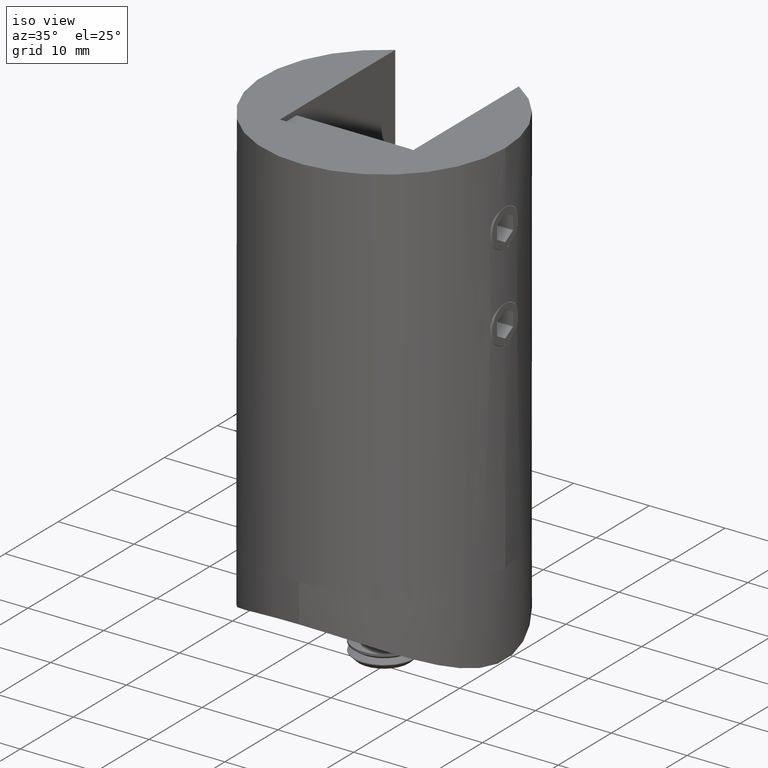
[diagram: clean part render]
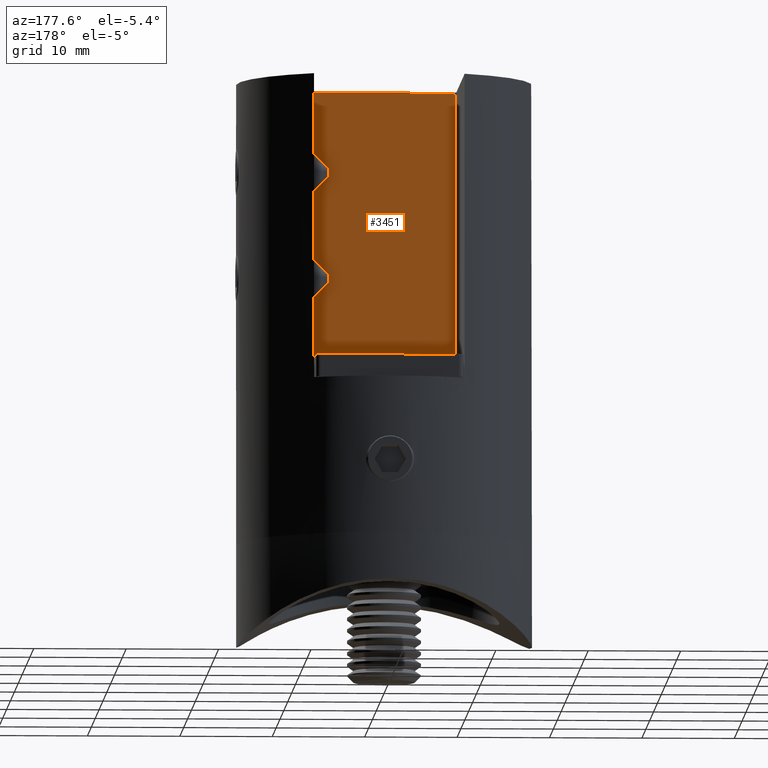
[diagram: tour spotlight — one face highlighted and labeled with its STEP entity id]
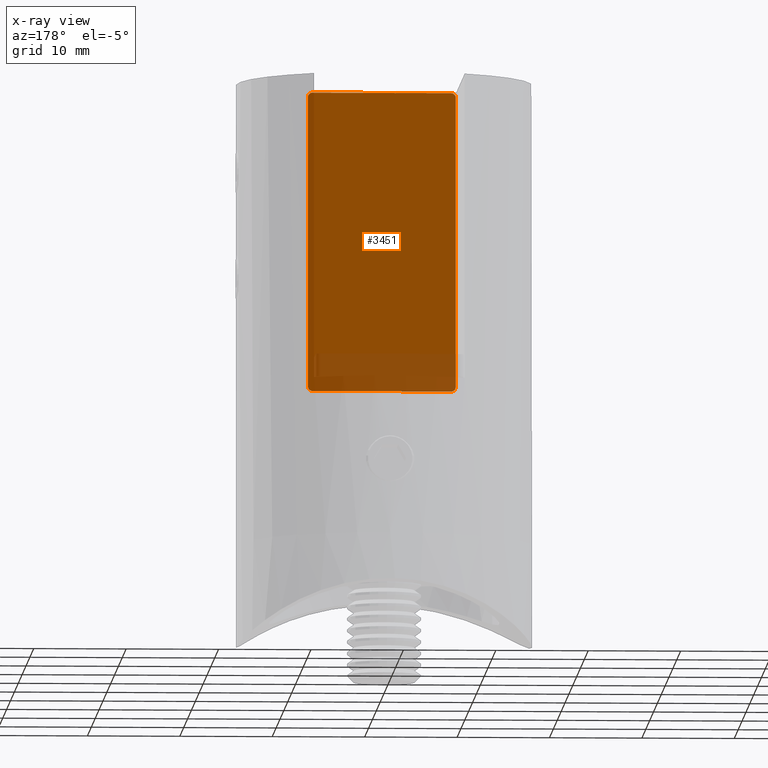
[diagram: x-ray of the same camera — body ghosted, this tour face saturated]
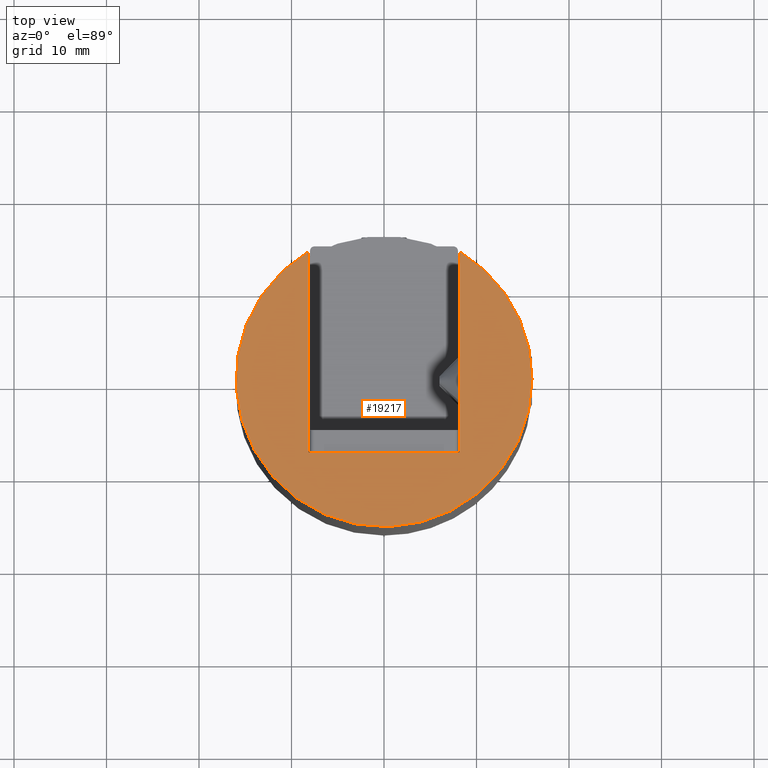
[diagram: tour spotlight — one face highlighted and labeled with its STEP entity id]
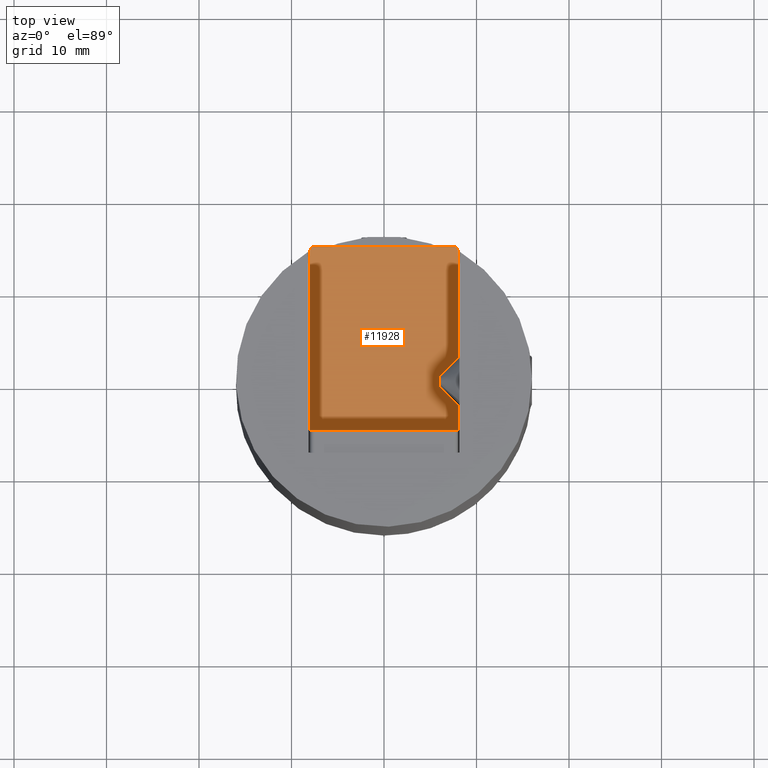
[diagram: tour spotlight — one face highlighted and labeled with its STEP entity id]
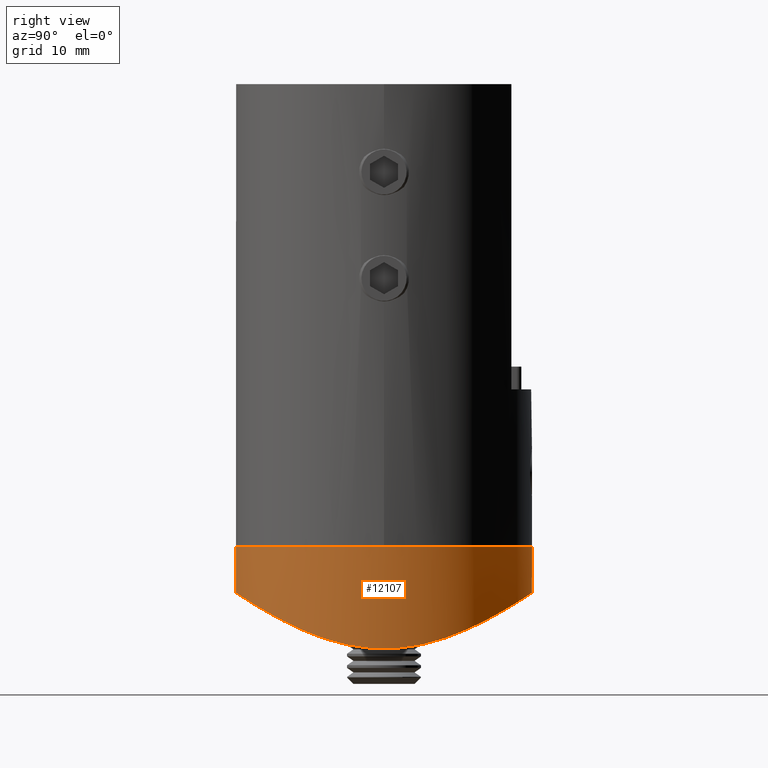
[diagram: tour spotlight — one face highlighted and labeled with its STEP entity id]
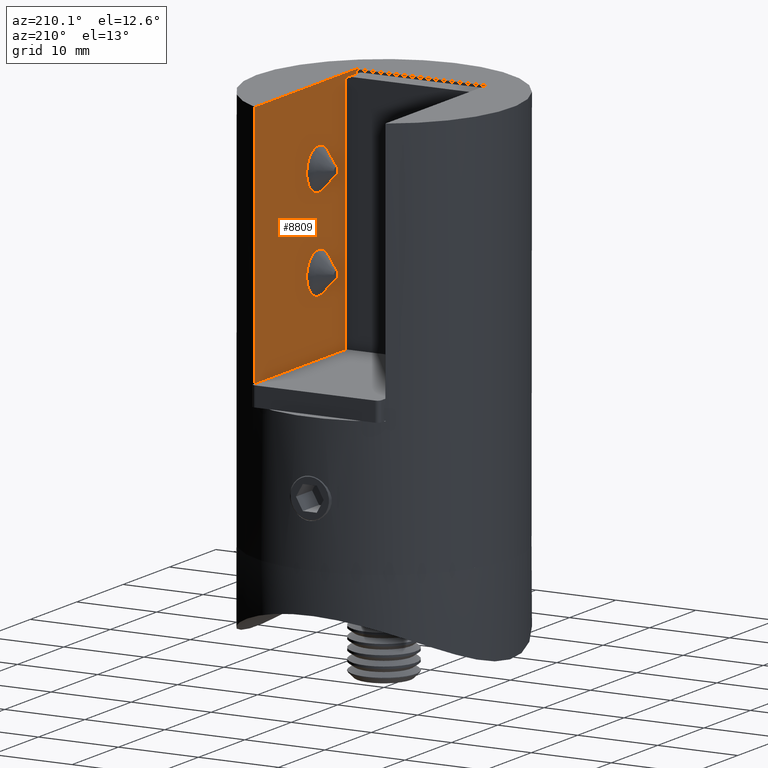
[diagram: tour spotlight — one face highlighted and labeled with its STEP entity id]
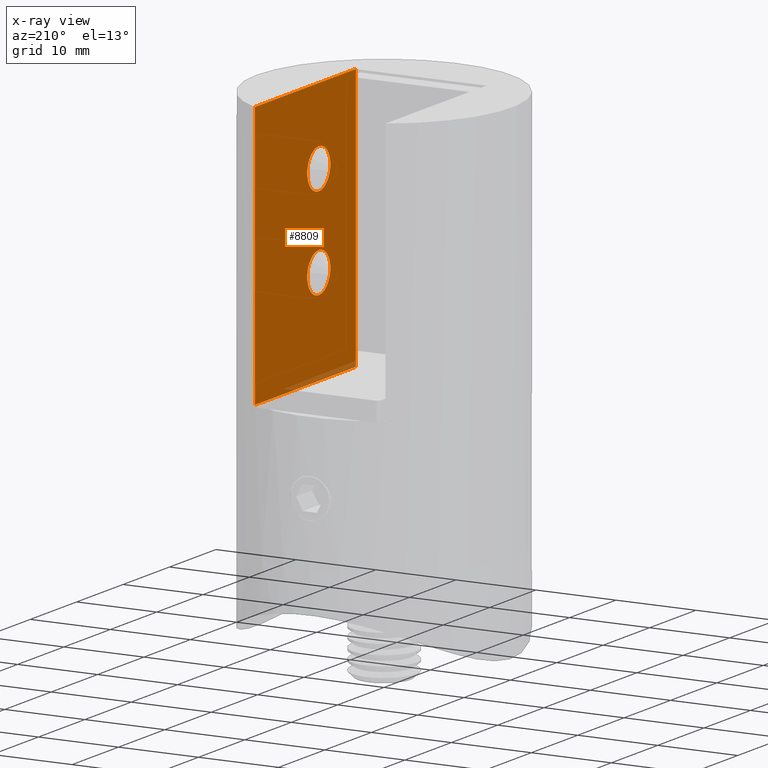
[diagram: x-ray of the same camera — body ghosted, this tour face saturated]
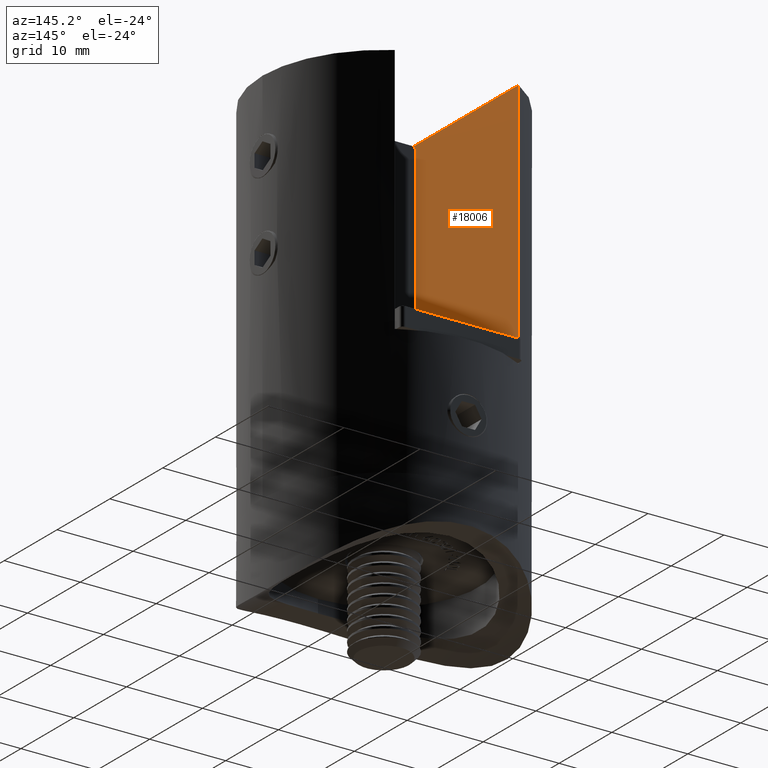
[diagram: tour spotlight — one face highlighted and labeled with its STEP entity id]
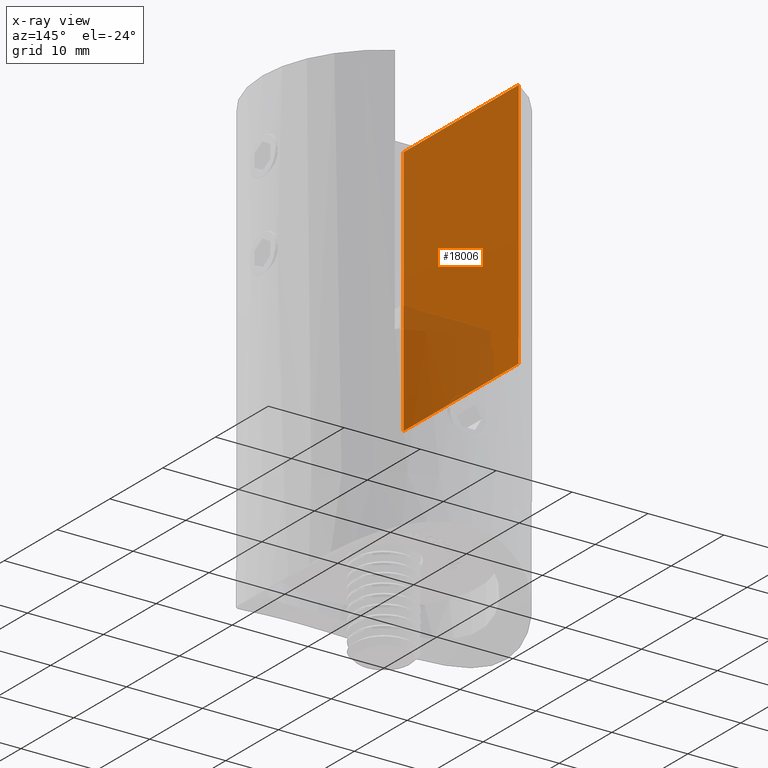
[diagram: x-ray of the same camera — body ghosted, this tour face saturated]
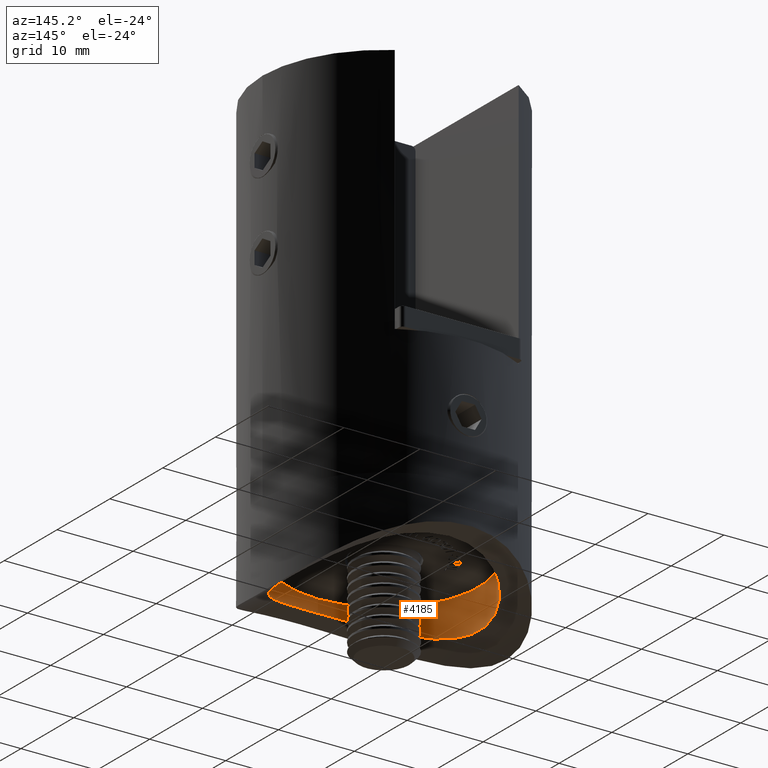
[diagram: tour spotlight — one face highlighted and labeled with its STEP entity id]
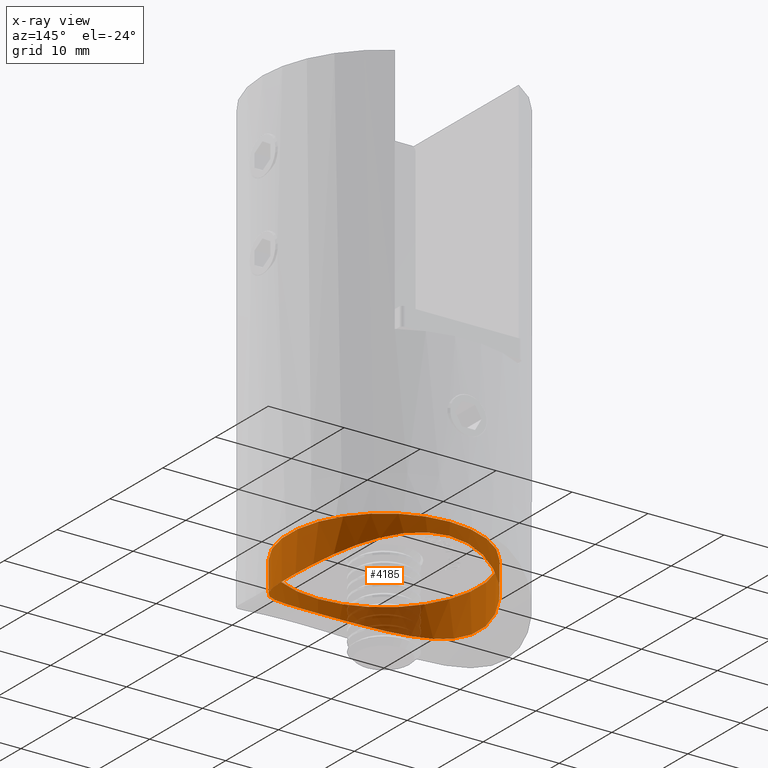
[diagram: x-ray of the same camera — body ghosted, this tour face saturated]
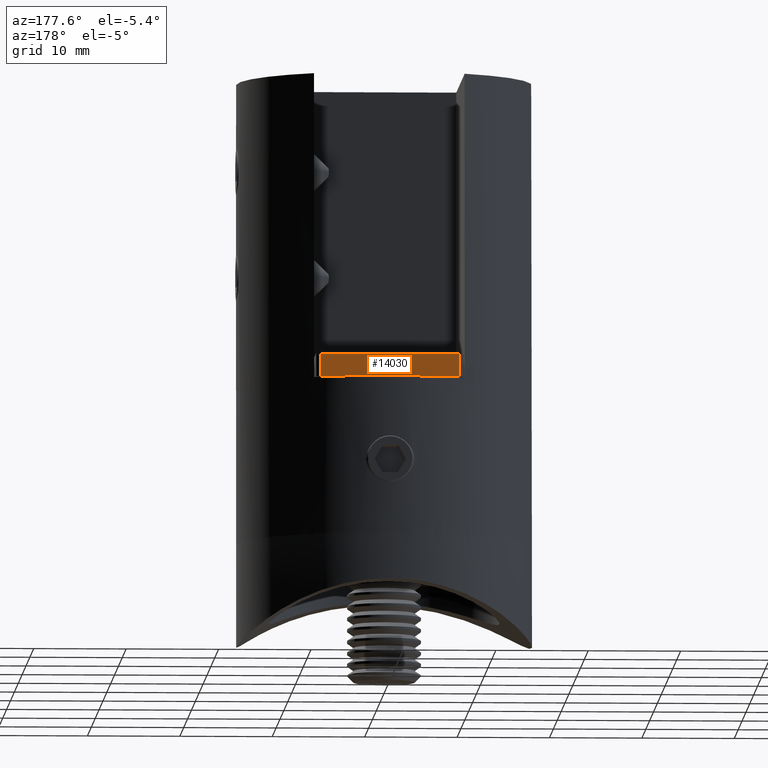
[diagram: tour spotlight — one face highlighted and labeled with its STEP entity id]
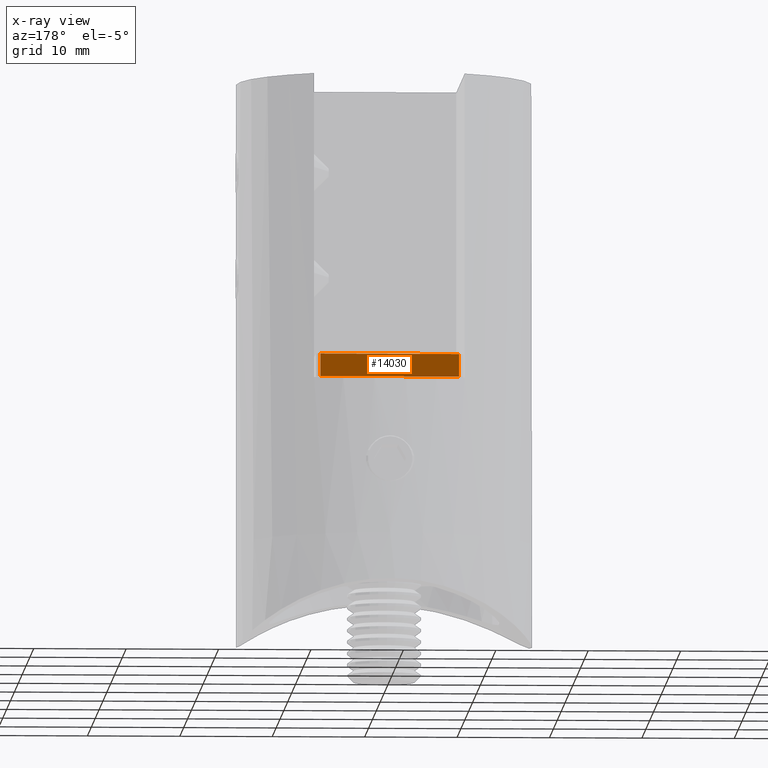
[diagram: x-ray of the same camera — body ghosted, this tour face saturated]
A machine part: a face-by-face anatomy tour. The part has 423 B-rep faces; the first image is the clean iso view, then the 8 largest visible faces are spotlighted one at a time (largest first), each with its STEP entity span.

Face 1 — auxiliary view, entity #3451. An x-ray twin of the same camera follows (body ghosted, this face saturated) — the face is partly hidden behind the body. In plain terms, the highlighted planar face has unit normal (0, -1, -0).
Definition (entity closure, byte-faithful):
#99 = DIRECTION ( 'NONE',  ( 0.000000000000000000, -1.000000000000000000, 0.000000000000000000 ) ) ;
#508 = CIRCLE ( 'NONE', #19099, 0.5000000000000004441 ) ;
#834 = LINE ( 'NONE', #11550, #1057 ) ;
#835 = DIRECTION ( 'NONE',  ( 1.000000000000000000, 0.000000000000000000, 0.000000000000000000 ) ) ;
#890 = ORIENTED_EDGE ( 'NONE', *, *, #2083, .F. ) ;
#1057 = VECTOR ( 'NONE', #13099, 1000.000000000000000 ) ;
#1381 = ORIENTED_EDGE ( 'NONE', *, *, #11801, .T. ) ;
#1737 = ORIENTED_EDGE ( 'NONE', *, *, #15595, .F. ) ;
#1869 = AXIS2_PLACEMENT_3D ( 'NONE', #6858, #6785, #3762 ) ;
#2078 = ORIENTED_EDGE ( 'NONE', *, *, #19090, .T. ) ;
#2083 = EDGE_CURVE ( 'NONE', #14645, #6654, #834, .T. ) ;
#2614 = CARTESIAN_POINT ( 'NONE',  ( -15.69999999999999929, 2.450000000000000178, -7.500000000000000000 ) ) ;
#2652 = VERTEX_POINT ( 'NONE', #6166 ) ;
#2808 = CARTESIAN_POINT ( 'NONE',  ( -15.69999999999999574, 2.450000000000000178, -8.000000000000000000 ) ) ;
#2904 = VERTEX_POINT ( 'NONE', #13452 ) ;
#3229 = DIRECTION ( 'NONE',  ( 0.000000000000000000, -0.000000000000000000, -1.000000000000000000 ) ) ;
#3280 = ORIENTED_EDGE ( 'NONE', *, *, #8243, .T. ) ;
#3433 = CARTESIAN_POINT ( 'NONE',  ( 16.19999999999999929, 2.450000000000000178, 7.499999999999996447 ) ) ;
#3451 = ADVANCED_FACE ( 'NONE', ( #17310 ), #12348, .F. ) ;
#3650 = EDGE_CURVE ( 'NONE', #2652, #9234, #5104, .T. ) ;
#3762 = DIRECTION ( 'NONE',  ( 0.000000000000000000, 0.000000000000000000, 1.000000000000000000 ) ) ;
#4139 = CARTESIAN_POINT ( 'NONE',  ( -15.69999999999999574, 2.450000000000000178, 8.000000000000000000 ) ) ;
#4167 = ORIENTED_EDGE ( 'NONE', *, *, #3650, .T. ) ;
#4855 = VECTOR ( 'NONE', #835, 1000.000000000000000 ) ;
#4933 = CIRCLE ( 'NONE', #1869, 0.5000000000000004441 ) ;
#5027 = DIRECTION ( 'NONE',  ( 0.000000000000000000, 0.000000000000000000, -1.000000000000000000 ) ) ;
#5045 = CARTESIAN_POINT ( 'NONE',  ( 15.69999999999999574, 2.450000000000000178, -8.000000000000000000 ) ) ;
#5104 = LINE ( 'NONE', #3433, #17058 ) ;
#5161 = CARTESIAN_POINT ( 'NONE',  ( -15.69999999999999929, 2.450000000000000178, 7.500000000000000000 ) ) ;
#5815 = AXIS2_PLACEMENT_3D ( 'NONE', #15451, #99, #3229 ) ;
#6166 = CARTESIAN_POINT ( 'NONE',  ( 16.19999999999999929, 2.450000000000000178, 7.499999999999996447 ) ) ;
#6591 = ORIENTED_EDGE ( 'NONE', *, *, #18603, .F. ) ;
#6654 = VERTEX_POINT ( 'NONE', #8895 ) ;
#6785 = DIRECTION ( 'NONE',  ( 0.000000000000000000, 1.000000000000000000, 0.000000000000000000 ) ) ;
#6790 = CARTESIAN_POINT ( 'NONE',  ( 15.69999999999999929, 2.450000000000000178, -7.500000000000000000 ) ) ;
#6858 = CARTESIAN_POINT ( 'NONE',  ( 15.69999999999999929, 2.450000000000000178, 7.500000000000000000 ) ) ;
#7687 = LINE ( 'NONE', #4139, #17950 ) ;
#8098 = CARTESIAN_POINT ( 'NONE',  ( 15.69999999999999574, 2.450000000000000178, 8.000000000000000000 ) ) ;
#8195 = DIRECTION ( 'NONE',  ( 0.000000000000000000, 0.000000000000000000, 1.000000000000000000 ) ) ;
#8243 = EDGE_CURVE ( 'NONE', #17887, #2652, #4933, .T. ) ;
#8512 = EDGE_LOOP ( 'NONE', ( #6591, #890, #1381, #2078, #3280, #4167, #16500, #1737 ) ) ;
#8895 = CARTESIAN_POINT ( 'NONE',  ( -16.19999999999999929, 2.450000000000000178, -7.499999999999996447 ) ) ;
#9234 = VERTEX_POINT ( 'NONE', #11148 ) ;
#9367 = VERTEX_POINT ( 'NONE', #2808 ) ;
#9405 = LINE ( 'NONE', #16246, #4855 ) ;
#10467 = VERTEX_POINT ( 'NONE', #5045 ) ;
#10575 = CIRCLE ( 'NONE', #10909, 0.5000000000000004441 ) ;
#10909 = AXIS2_PLACEMENT_3D ( 'NONE', #2614, #11800, #19390 ) ;
#11148 = CARTESIAN_POINT ( 'NONE',  ( 16.19999999999999929, 2.450000000000000178, -7.499999999999996447 ) ) ;
#11550 = CARTESIAN_POINT ( 'NONE',  ( -16.19999999999999929, 2.450000000000000178, 7.499999999999996447 ) ) ;
#11800 = DIRECTION ( 'NONE',  ( -0.000000000000000000, -1.000000000000000000, 0.000000000000000000 ) ) ;
#11801 = EDGE_CURVE ( 'NONE', #14645, #2904, #11808, .T. ) ;
#11808 = CIRCLE ( 'NONE', #16775, 0.5000000000000004441 ) ;
#12348 = PLANE ( 'NONE',  #5815 ) ;
#13099 = DIRECTION ( 'NONE',  ( 0.000000000000000000, 0.000000000000000000, -1.000000000000000000 ) ) ;
#13397 = CARTESIAN_POINT ( 'NONE',  ( -16.19999999999999929, 2.450000000000000178, 7.499999999999996447 ) ) ;
#13452 = CARTESIAN_POINT ( 'NONE',  ( -15.69999999999999574, 2.450000000000000178, 8.000000000000000000 ) ) ;
#14645 = VERTEX_POINT ( 'NONE', #13397 ) ;
#15451 = CARTESIAN_POINT ( 'NONE',  ( -15.69999999999999929, 2.450000000000000178, -7.500000000000000000 ) ) ;
#15595 = EDGE_CURVE ( 'NONE', #9367, #10467, #9405, .T. ) ;
#15817 = DIRECTION ( 'NONE',  ( 0.000000000000000000, 0.000000000000000000, 1.000000000000000000 ) ) ;
#15887 = DIRECTION ( 'NONE',  ( 0.000000000000000000, 1.000000000000000000, 0.000000000000000000 ) ) ;
#15905 = DIRECTION ( 'NONE',  ( 0.000000000000000000, 1.000000000000000000, 0.000000000000000000 ) ) ;
#16246 = CARTESIAN_POINT ( 'NONE',  ( -15.69999999999999574, 2.450000000000000178, -8.000000000000000000 ) ) ;
#16500 = ORIENTED_EDGE ( 'NONE', *, *, #18734, .T. ) ;
#16775 = AXIS2_PLACEMENT_3D ( 'NONE', #5161, #15887, #15817 ) ;
#17058 = VECTOR ( 'NONE', #5027, 1000.000000000000000 ) ;
#17310 = FACE_OUTER_BOUND ( 'NONE', #8512, .T. ) ;
#17887 = VERTEX_POINT ( 'NONE', #8098 ) ;
#17950 = VECTOR ( 'NONE', #19445, 1000.000000000000000 ) ;
#18603 = EDGE_CURVE ( 'NONE', #6654, #9367, #10575, .T. ) ;
#18734 = EDGE_CURVE ( 'NONE', #9234, #10467, #508, .T. ) ;
#19090 = EDGE_CURVE ( 'NONE', #2904, #17887, #7687, .T. ) ;
#19099 = AXIS2_PLACEMENT_3D ( 'NONE', #6790, #15905, #8195 ) ;
#19390 = DIRECTION ( 'NONE',  ( 0.000000000000000000, 0.000000000000000000, -1.000000000000000000 ) ) ;
#19445 = DIRECTION ( 'NONE',  ( 1.000000000000000000, 0.000000000000000000, 0.000000000000000000 ) ) ;

Face 2 — top view, entity #19217. In plain terms, the highlighted planar face has unit normal (0, 0, 1).
Definition (entity closure, byte-faithful):
#10 = CARTESIAN_POINT ( 'NONE',  ( -8.150000000000000355, -8.000000000000000000, 0.000000000000000000 ) ) ;
#451 = CARTESIAN_POINT ( 'NONE',  ( 8.150000000000011013, -8.000000000000000000, -1.387778780781445676E-14 ) ) ;
#856 = AXIS2_PLACEMENT_3D ( 'NONE', #16543, #10325, #2612 ) ;
#866 = CARTESIAN_POINT ( 'NONE',  ( 8.150000000000011013, 0.000000000000000000, 0.000000000000000000 ) ) ;
#1262 = CARTESIAN_POINT ( 'NONE',  ( 0.000000000000000000, 0.000000000000000000, 0.000000000000000000 ) ) ;
#1328 = CIRCLE ( 'NONE', #856, 16.00000000000000000 ) ;
#2203 = DIRECTION ( 'NONE',  ( 0.000000000000000000, -1.000000000000000000, 0.000000000000000000 ) ) ;
#2288 = DIRECTION ( 'NONE',  ( 1.000000000000000000, 0.000000000000000000, 0.000000000000000000 ) ) ;
#2393 = DIRECTION ( 'NONE',  ( -0.000000000000000000, 1.000000000000000000, 0.000000000000000000 ) ) ;
#2612 = DIRECTION ( 'NONE',  ( 1.000000000000000000, 0.000000000000000000, 0.000000000000000000 ) ) ;
#3378 = ORIENTED_EDGE ( 'NONE', *, *, #6462, .F. ) ;
#3623 = ORIENTED_EDGE ( 'NONE', *, *, #8023, .T. ) ;
#6343 = LINE ( 'NONE', #866, #8964 ) ;
#6462 = EDGE_CURVE ( 'NONE', #16434, #11613, #19368, .T. ) ;
#7320 = DIRECTION ( 'NONE',  ( 1.000000000000000000, 0.000000000000000000, -0.000000000000000000 ) ) ;
#8023 = EDGE_CURVE ( 'NONE', #16434, #10866, #1328, .T. ) ;
#8771 = PLANE ( 'NONE',  #17691 ) ;
#8907 = CARTESIAN_POINT ( 'NONE',  ( -8.150000000000000355, 13.76871453694933578, 0.000000000000000000 ) ) ;
#8964 = VECTOR ( 'NONE', #2393, 1000.000000000000000 ) ;
#9118 = EDGE_LOOP ( 'NONE', ( #3378, #3623, #9573, #11216 ) ) ;
#9573 = ORIENTED_EDGE ( 'NONE', *, *, #9974, .F. ) ;
#9610 = FACE_OUTER_BOUND ( 'NONE', #9118, .T. ) ;
#9974 = EDGE_CURVE ( 'NONE', #17065, #10866, #6343, .T. ) ;
#10325 = DIRECTION ( 'NONE',  ( 0.000000000000000000, 0.000000000000000000, 1.000000000000000000 ) ) ;
#10866 = VERTEX_POINT ( 'NONE', #17070 ) ;
#11216 = ORIENTED_EDGE ( 'NONE', *, *, #19004, .F. ) ;
#11613 = VERTEX_POINT ( 'NONE', #10 ) ;
#13207 = CARTESIAN_POINT ( 'NONE',  ( 0.000000000000000000, -8.000000000000000000, 0.000000000000000000 ) ) ;
#15362 = VECTOR ( 'NONE', #2203, 1000.000000000000000 ) ;
#15434 = CARTESIAN_POINT ( 'NONE',  ( -8.150000000000000355, 0.000000000000000000, 0.000000000000000000 ) ) ;
#15851 = VECTOR ( 'NONE', #2288, 1000.000000000000000 ) ;
#16311 = LINE ( 'NONE', #13207, #15851 ) ;
#16434 = VERTEX_POINT ( 'NONE', #8907 ) ;
#16475 = DIRECTION ( 'NONE',  ( 0.000000000000000000, 0.000000000000000000, 1.000000000000000000 ) ) ;
#16543 = CARTESIAN_POINT ( 'NONE',  ( 0.000000000000000000, 0.000000000000000000, 0.000000000000000000 ) ) ;
#17065 = VERTEX_POINT ( 'NONE', #451 ) ;
#17070 = CARTESIAN_POINT ( 'NONE',  ( 8.150000000000011013, 13.76871453694933045, 0.000000000000000000 ) ) ;
#17691 = AXIS2_PLACEMENT_3D ( 'NONE', #1262, #16475, #7320 ) ;
#19004 = EDGE_CURVE ( 'NONE', #11613, #17065, #16311, .T. ) ;
#19217 = ADVANCED_FACE ( 'NONE', ( #9610 ), #8771, .T. ) ;
#19368 = LINE ( 'NONE', #15434, #15362 ) ;

Face 3 — top view, entity #11928. In plain terms, the highlighted planar face has unit normal (0, -0, -1).
Definition (entity closure, byte-faithful):
#278 = CIRCLE ( 'NONE', #17929, 0.5000000000000004441 ) ;
#489 = VECTOR ( 'NONE', #19512, 1000.000000000000000 ) ;
#666 = VERTEX_POINT ( 'NONE', #13976 ) ;
#1303 = CARTESIAN_POINT ( 'NONE',  ( -9.699999999999999289, 2.450000000000000178, 8.000000000000000000 ) ) ;
#1409 = DIRECTION ( 'NONE',  ( 0.000000000000000000, 0.000000000000000000, -1.000000000000000000 ) ) ;
#1605 = ORIENTED_EDGE ( 'NONE', *, *, #19337, .T. ) ;
#1961 = FACE_OUTER_BOUND ( 'NONE', #3778, .T. ) ;
#2019 = VERTEX_POINT ( 'NONE', #10813 ) ;
#2255 = ORIENTED_EDGE ( 'NONE', *, *, #18230, .T. ) ;
#2646 = DIRECTION ( 'NONE',  ( 0.000000000000000000, -0.000000000000000000, -1.000000000000000000 ) ) ;
#2737 = CARTESIAN_POINT ( 'NONE',  ( 9.700000000000001066, 2.450000000000000178, -8.000000000000000000 ) ) ;
#3267 = CARTESIAN_POINT ( 'NONE',  ( 9.700000000000001066, 2.450000000000000178, 8.000000000000000000 ) ) ;
#3778 = EDGE_LOOP ( 'NONE', ( #10668, #4484, #11085, #2255, #1605, #10522, #10178, #19067 ) ) ;
#3818 = EDGE_CURVE ( 'NONE', #17481, #11098, #18969, .T. ) ;
#4198 = DIRECTION ( 'NONE',  ( 0.000000000000000000, 0.000000000000000000, 1.000000000000000000 ) ) ;
#4450 = DIRECTION ( 'NONE',  ( 1.000000000000000000, 0.000000000000000000, 0.000000000000000000 ) ) ;
#4484 = ORIENTED_EDGE ( 'NONE', *, *, #4510, .F. ) ;
#4510 = EDGE_CURVE ( 'NONE', #17481, #666, #14210, .T. ) ;
#6314 = AXIS2_PLACEMENT_3D ( 'NONE', #9175, #18255, #9243 ) ;
#6712 = DIRECTION ( 'NONE',  ( 0.000000000000000000, 1.000000000000000000, 0.000000000000000000 ) ) ;
#6841 = CARTESIAN_POINT ( 'NONE',  ( -9.699999999999999289, 2.450000000000000178, -8.000000000000000000 ) ) ;
#7425 = PLANE ( 'NONE',  #18816 ) ;
#8231 = CIRCLE ( 'NONE', #18937, 0.5000000000000004441 ) ;
#8384 = DIRECTION ( 'NONE',  ( 0.000000000000000000, 0.000000000000000000, 1.000000000000000000 ) ) ;
#8443 = CARTESIAN_POINT ( 'NONE',  ( -9.699999999999999289, 2.450000000000000178, 7.500000000000000000 ) ) ;
#8613 = VECTOR ( 'NONE', #4450, 1000.000000000000000 ) ;
#9175 = CARTESIAN_POINT ( 'NONE',  ( 9.700000000000001066, 2.450000000000000178, 7.500000000000000000 ) ) ;
#9243 = DIRECTION ( 'NONE',  ( 0.000000000000000000, 0.000000000000000000, 1.000000000000000000 ) ) ;
#9347 = LINE ( 'NONE', #14958, #489 ) ;
#9815 = VERTEX_POINT ( 'NONE', #3267 ) ;
#10178 = ORIENTED_EDGE ( 'NONE', *, *, #11070, .T. ) ;
#10234 = CARTESIAN_POINT ( 'NONE',  ( 10.20000000000000107, 2.450000000000000178, 7.500000000000000000 ) ) ;
#10242 = DIRECTION ( 'NONE',  ( 0.000000000000000000, 1.000000000000000000, 0.000000000000000000 ) ) ;
#10370 = CARTESIAN_POINT ( 'NONE',  ( 9.700000000000001066, 2.450000000000000178, -7.500000000000000000 ) ) ;
#10504 = CARTESIAN_POINT ( 'NONE',  ( -9.699999999999999289, 2.450000000000000178, 8.000000000000000000 ) ) ;
#10522 = ORIENTED_EDGE ( 'NONE', *, *, #19264, .T. ) ;
#10616 = DIRECTION ( 'NONE',  ( -0.000000000000000000, -1.000000000000000000, 0.000000000000000000 ) ) ;
#10668 = ORIENTED_EDGE ( 'NONE', *, *, #15985, .F. ) ;
#10813 = CARTESIAN_POINT ( 'NONE',  ( 10.20000000000000107, 2.450000000000000178, -7.500000000000000000 ) ) ;
#11070 = EDGE_CURVE ( 'NONE', #2019, #12908, #8231, .T. ) ;
#11085 = ORIENTED_EDGE ( 'NONE', *, *, #3818, .T. ) ;
#11098 = VERTEX_POINT ( 'NONE', #10504 ) ;
#11709 = EDGE_CURVE ( 'NONE', #19562, #12908, #16129, .T. ) ;
#11761 = CARTESIAN_POINT ( 'NONE',  ( -9.699999999999999289, 2.450000000000000178, -8.000000000000000000 ) ) ;
#11928 = ADVANCED_FACE ( 'NONE', ( #1961 ), #7425, .F. ) ;
#12035 = VECTOR ( 'NONE', #14291, 1000.000000000000000 ) ;
#12213 = CIRCLE ( 'NONE', #6314, 0.5000000000000004441 ) ;
#12908 = VERTEX_POINT ( 'NONE', #2737 ) ;
#13645 = CARTESIAN_POINT ( 'NONE',  ( -9.699999999999999289, 2.450000000000000178, -7.500000000000000000 ) ) ;
#13976 = CARTESIAN_POINT ( 'NONE',  ( -10.19999999999999929, 2.450000000000000178, -7.500000000000000000 ) ) ;
#14013 = DIRECTION ( 'NONE',  ( 0.000000000000000000, 0.000000000000000000, -1.000000000000000000 ) ) ;
#14210 = LINE ( 'NONE', #16993, #16812 ) ;
#14291 = DIRECTION ( 'NONE',  ( 1.000000000000000000, 0.000000000000000000, 0.000000000000000000 ) ) ;
#14432 = CARTESIAN_POINT ( 'NONE',  ( -10.19999999999999929, 2.450000000000000178, 7.500000000000000000 ) ) ;
#14958 = CARTESIAN_POINT ( 'NONE',  ( 10.20000000000000107, 2.450000000000000178, 7.500000000000000000 ) ) ;
#15458 = AXIS2_PLACEMENT_3D ( 'NONE', #8443, #6712, #8384 ) ;
#15985 = EDGE_CURVE ( 'NONE', #666, #19562, #278, .T. ) ;
#16068 = LINE ( 'NONE', #1303, #8613 ) ;
#16129 = LINE ( 'NONE', #6841, #12035 ) ;
#16812 = VECTOR ( 'NONE', #14013, 1000.000000000000000 ) ;
#16859 = VERTEX_POINT ( 'NONE', #10234 ) ;
#16993 = CARTESIAN_POINT ( 'NONE',  ( -10.19999999999999929, 2.450000000000000178, 7.500000000000000000 ) ) ;
#17481 = VERTEX_POINT ( 'NONE', #14432 ) ;
#17929 = AXIS2_PLACEMENT_3D ( 'NONE', #19734, #10616, #1409 ) ;
#18230 = EDGE_CURVE ( 'NONE', #11098, #9815, #16068, .T. ) ;
#18255 = DIRECTION ( 'NONE',  ( 0.000000000000000000, 1.000000000000000000, 0.000000000000000000 ) ) ;
#18816 = AXIS2_PLACEMENT_3D ( 'NONE', #13645, #19427, #2646 ) ;
#18937 = AXIS2_PLACEMENT_3D ( 'NONE', #10370, #10242, #4198 ) ;
#18969 = CIRCLE ( 'NONE', #15458, 0.5000000000000004441 ) ;
#19067 = ORIENTED_EDGE ( 'NONE', *, *, #11709, .F. ) ;
#19264 = EDGE_CURVE ( 'NONE', #16859, #2019, #9347, .T. ) ;
#19337 = EDGE_CURVE ( 'NONE', #9815, #16859, #12213, .T. ) ;
#19427 = DIRECTION ( 'NONE',  ( 0.000000000000000000, -1.000000000000000000, 0.000000000000000000 ) ) ;
#19512 = DIRECTION ( 'NONE',  ( 0.000000000000000000, 0.000000000000000000, -1.000000000000000000 ) ) ;
#19562 = VERTEX_POINT ( 'NONE', #11761 ) ;
#19734 = CARTESIAN_POINT ( 'NONE',  ( -9.699999999999999289, 2.450000000000000178, -7.500000000000000000 ) ) ;

Face 4 — right view, entity #12107. In plain terms, the highlighted cylindrical surface (bore or boss wall) has radius 16 mm, axis along (0, -0, -1).
Definition (entity closure, byte-faithful):
#553 = CARTESIAN_POINT ( 'NONE',  ( 8.130541118761520636, -1.391100727126341585, -13.81900704416462489 ) ) ;
#617 = CARTESIAN_POINT ( 'NONE',  ( 2.162802222802237218, -0.07385003039676880932, -15.88913970827019284 ) ) ;
#675 = CARTESIAN_POINT ( 'NONE',  ( 15.77490872757177520, -5.863532677428071160, -2.726765751964202789 ) ) ;
#735 = CARTESIAN_POINT ( 'NONE',  ( 15.10850992129838311, -5.308628103353483674, -5.292797218956190264 ) ) ;
#870 = CARTESIAN_POINT ( 'NONE',  ( 11.71979043406766152, -3.030478474650312393, 10.90439978711422953 ) ) ;
#930 = CARTESIAN_POINT ( 'NONE',  ( -9.812002301453734532, -2.078813026001570918, 12.64863726998572169 ) ) ;
#993 = CARTESIAN_POINT ( 'NONE',  ( 1.111836551517509042, -0.01958014879024436855, 15.97048600726808054 ) ) ;
#1058 = CARTESIAN_POINT ( 'NONE',  ( 15.13104560772049645, -5.326760872273300862, 5.227712786830983838 ) ) ;
#1122 = CARTESIAN_POINT ( 'NONE',  ( 12.70400355167247319, -3.608075241889363127, 9.739886530507446238 ) ) ;
#1250 = CARTESIAN_POINT ( 'NONE',  ( -0.5467149535870703403, 3.476223215531642281E-15, -16.00000000000000711 ) ) ;
#1261 = B_SPLINE_CURVE_WITH_KNOTS ( 'NONE', 3,
 ( #18935, #9791, #617, #8321, #3690, #11327, #6646, #9726, #553, #17536, #11254, #9852, #2065, #8442, #19129, #2132, #12812, #12880, #735, #6782, #14566, #675, #14423, #14497, #5299, #5363, #17853, #2336, #16277, #1058, #8759, #19367, #6973, #14626, #19436, #2469, #1122, #5495, #870, #8569, #7047, #13075, #8693, #19257, #5627, #17721, #10243, #11774, #10299, #993, #11661, #2594, #13325, #16217, #17664, #11714, #3882, #5430, #8509, #14691, #10113, #930, #4130, #10053, #2529, #4006, #16153, #11597, #13194, #7110, #19188, #2397, #3946, #13140, #14760, #14879, #17789, #4066, #8623, #5559, #5684, #16400, #13267, #19316, #10177, #14824, #7237, #17912, #11963, #11905, #10508, #11842, #7506, #8820, #2657, #5888, #10578, #18244, #9027, #16464, #4199, #16594, #2723, #2792, #6020, #1321, #5955, #1250, #10647 ),
 .UNSPECIFIED., .T., .F.,
 ( 4, 2, 2, 2, 2, 2, 2, 2, 2, 2, 2, 2, 2, 2, 2, 2, 2, 2, 2, 2, 2, 2, 2, 2, 2, 1, 2, 2, 2, 2, 2, 2, 2, 2, 2, 2, 2, 2, 2, 2, 2, 2, 2, 2, 2, 2, 2, 2, 2, 2, 2, 2, 2, 2, 4 ),
 ( 0.000000000000000000, 0.003228062074980117893, 0.004842093112470175972, 0.006456124149960234052, 0.009684186224940350210, 0.01291224829992046463, 0.01452627933741052271, 0.01614031037490058079, 0.01936837244988069348, 0.02098240348737074809, 0.02259643452486080617, 0.02421046556235086078, 0.02582449659984091886, 0.02905255867482102808, 0.03066658971231108963, 0.03228062074980114771, 0.03389465178729120926, 0.03550868282478126386, 0.03712271386227132541, 0.03873674489976138696, 0.04196480697474149618, 0.04357883801223155773, 0.04519286904972161234, 0.04842093112470172156, 0.05003496216219178311, 0.05164899319968183772, 0.05326302423717189233, 0.05487705527466195388, 0.05810511734964207003, 0.05971914838713213852, 0.06133317942462219313, 0.06294721046211225468, 0.06456124149960230929, 0.06778930357458241851, 0.06940333461207248700, 0.07101736564956254161, 0.07263139668705261009, 0.07343841220579763740, 0.07424542772454266470, 0.07747348979952277392, 0.07828050531826780123, 0.07908752083701282853, 0.08070155187450288314, 0.08231558291199293775, 0.08392961394948299236, 0.08715767602446312934, 0.09038573809944323856, 0.09199976913693329317, 0.09361380017442334778, 0.09684186224940345700, 0.09845589328689352548, 0.09926290880563855279, 0.1000699243243835801, 0.1016839553618736347, 0.1032979863993636754 ),
 .UNSPECIFIED. ) ;
#1321 = CARTESIAN_POINT ( 'NONE',  ( -2.164908011609237182, -0.09120946649448465060, -15.86204911743261192 ) ) ;
#1468 = EDGE_CURVE ( 'NONE', #2138, #2138, #16652, .T. ) ;
#2065 = CARTESIAN_POINT ( 'NONE',  ( 12.03352161052860225, -3.208211549429214049, -10.55715235723237377 ) ) ;
#2132 = CARTESIAN_POINT ( 'NONE',  ( 13.83397895794804278, -4.343367616628929007, -8.102301808186028964 ) ) ;
#2138 = VERTEX_POINT ( 'NONE', #4719 ) ;
#2336 = CARTESIAN_POINT ( 'NONE',  ( 15.57501006091767515, -5.692989327537908650, 3.702434811011921845 ) ) ;
#2397 = CARTESIAN_POINT ( 'NONE',  ( -15.11478067928221591, -5.313678253764541282, 5.274540260561693117 ) ) ;
#2469 = CARTESIAN_POINT ( 'NONE',  ( 13.00573230629547439, -3.798387113308692609, 9.333207812262424241 ) ) ;
#2529 = CARTESIAN_POINT ( 'NONE',  ( -12.05392479121809046, -3.207642341430238186, 10.57031934000033147 ) ) ;
#2594 = CARTESIAN_POINT ( 'NONE',  ( -1.042858073736825597, -0.01647405515341673898, 15.97517427357765563 ) ) ;
#2657 = CARTESIAN_POINT ( 'NONE',  ( -9.825312265958483948, -2.084764760639122194, -12.63824017794604337 ) ) ;
#2690 = FACE_OUTER_BOUND ( 'NONE', #8854, .T. ) ;
#2723 = CARTESIAN_POINT ( 'NONE',  ( -3.747472486822372773, -0.2910670728257301332, -15.55727481239877008 ) ) ;
#2779 = AXIS2_PLACEMENT_3D ( 'NONE', #8022, #6346, #7940 ) ;
#2792 = CARTESIAN_POINT ( 'NONE',  ( -3.485726828505891106, -0.2514084154458020026, -15.61799768039313996 ) ) ;
#3690 = CARTESIAN_POINT ( 'NONE',  ( 4.251902136647176533, -0.3715117522175356291, -15.43401712533286130 ) ) ;
#3781 = ORIENTED_EDGE ( 'NONE', *, *, #5021, .F. ) ;
#3882 = CARTESIAN_POINT ( 'NONE',  ( -6.721650818704468122, -0.9487792169212915239, 14.52927135399406566 ) ) ;
#3946 = CARTESIAN_POINT ( 'NONE',  ( -15.35038739144273912, -5.506009415625038095, 4.520503226235753402 ) ) ;
#4006 = CARTESIAN_POINT ( 'NONE',  ( -12.69487955101366694, -3.594529789712058943, 9.791735161200366022 ) ) ;
#4066 = CARTESIAN_POINT ( 'NONE',  ( -15.99935160277725288, -6.060134079170732768, 1.100573636296142022 ) ) ;
#4130 = CARTESIAN_POINT ( 'NONE',  ( -10.60246786348570325, -2.447457319275142318, 11.99379377658119594 ) ) ;
#4199 = CARTESIAN_POINT ( 'NONE',  ( -4.528215867626921742, -0.4268937406720419991, -15.34819261451298544 ) ) ;
#4719 = CARTESIAN_POINT ( 'NONE',  ( 0.000000000000000000, 5.000000000000000000, -16.00000000000000000 ) ) ;
#5021 = EDGE_CURVE ( 'NONE', #5610, #5610, #1261, .T. ) ;
#5299 = CARTESIAN_POINT ( 'NONE',  ( 15.99889945513611700, -6.059734157207304683, -0.5739181088469769154 ) ) ;
#5363 = CARTESIAN_POINT ( 'NONE',  ( 16.00210777862565337, -6.062571913201299623, 1.053190261119271165 ) ) ;
#5430 = CARTESIAN_POINT ( 'NONE',  ( -7.197102279576335526, -1.092327983459493224, 14.29938350260618485 ) ) ;
#5495 = CARTESIAN_POINT ( 'NONE',  ( 12.06181014241624005, -3.224534291990288626, 10.52472479242910453 ) ) ;
#5520 = CARTESIAN_POINT ( 'NONE',  ( 0.000000000000000000, 5.000000000000000000, 0.000000000000000000 ) ) ;
#5559 = CARTESIAN_POINT ( 'NONE',  ( -15.99326873482955236, -6.054746644116492327, -0.5381640911452839626 ) ) ;
#5610 = VERTEX_POINT ( 'NONE', #10756 ) ;
#5627 = CARTESIAN_POINT ( 'NONE',  ( 6.773507639207513975, -0.9639315492255671192, 14.50507062910953238 ) ) ;
#5684 = CARTESIAN_POINT ( 'NONE',  ( -15.96566512601532395, -6.030386982001304297, -1.082498266701986678 ) ) ;
#5888 = CARTESIAN_POINT ( 'NONE',  ( -9.411353361399397599, -1.904576057870598804, -12.94954299253910968 ) ) ;
#5955 = CARTESIAN_POINT ( 'NONE',  ( -1.090827547207879444, -0.01864438337379884306, -15.97189795124006473 ) ) ;
#6020 = CARTESIAN_POINT ( 'NONE',  ( -2.696456683992734860, -0.1451357774197707673, -15.78029447197594415 ) ) ;
#6346 = DIRECTION ( 'NONE',  ( -0.000000000000000000, -1.000000000000000000, -0.000000000000000000 ) ) ;
#6646 = CARTESIAN_POINT ( 'NONE',  ( 5.772343269960320988, -0.6946781532575976303, -14.93167379752965473 ) ) ;
#6782 = CARTESIAN_POINT ( 'NONE',  ( 15.42559031887747523, -5.567332529912010664, -4.281581221595087250 ) ) ;
#6795 = FACE_OUTER_BOUND ( 'NONE', #7645, .T. ) ;
#6973 = CARTESIAN_POINT ( 'NONE',  ( 14.32465776655085676, -4.704759313945467092, 7.146297780622557383 ) ) ;
#7047 = CARTESIAN_POINT ( 'NONE',  ( 9.865639215707155074, -2.088296295899021882, 12.63774528741735281 ) ) ;
#7110 = CARTESIAN_POINT ( 'NONE',  ( -14.53161606438342801, -4.859603105429813219, 6.715620687923966159 ) ) ;
#7237 = CARTESIAN_POINT ( 'NONE',  ( -15.11790863573347821, -5.316178976651885435, -5.265928485718427865 ) ) ;
#7506 = CARTESIAN_POINT ( 'NONE',  ( -10.98755386895284758, -2.640477864831261456, -11.64172284715012751 ) ) ;
#7645 = EDGE_LOOP ( 'NONE', ( #3781 ) ) ;
#7940 = DIRECTION ( 'NONE',  ( 0.000000000000000000, 0.000000000000000000, -1.000000000000000000 ) ) ;
#8022 = CARTESIAN_POINT ( 'NONE',  ( 0.000000000000000000, 0.000000000000000000, 0.000000000000000000 ) ) ;
#8321 = CARTESIAN_POINT ( 'NONE',  ( 3.733504146602000251, -0.2844914261029866664, -15.56748423215123900 ) ) ;
#8442 = CARTESIAN_POINT ( 'NONE',  ( 12.68024191844236270, -3.593356043621906082, -9.770904417435113842 ) ) ;
#8509 = CARTESIAN_POINT ( 'NONE',  ( -8.110807478866485454, -1.397652382978113561, 13.80164670675395300 ) ) ;
#8569 = CARTESIAN_POINT ( 'NONE',  ( 10.64387692798092822, -2.456888350107875318, 11.98939423343472832 ) ) ;
#8623 = CARTESIAN_POINT ( 'NONE',  ( -16.00015859834054766, -6.060847867454414839, -0.2633096187692477441 ) ) ;
#8693 = CARTESIAN_POINT ( 'NONE',  ( 8.161962422206624268, -1.415961414347748804, 13.77146542663681217 ) ) ;
#8759 = CARTESIAN_POINT ( 'NONE',  ( 14.95227849257499919, -5.183806075202462615, 5.718345991040335363 ) ) ;
#8820 = CARTESIAN_POINT ( 'NONE',  ( -10.61283868468660785, -2.452557239509840503, -11.98455384951243552 ) ) ;
#8854 = EDGE_LOOP ( 'NONE', ( #13545 ) ) ;
#9027 = CARTESIAN_POINT ( 'NONE',  ( -5.790292232700016584, -0.6991425015800778464, -14.92465879011944452 ) ) ;
#9726 = CARTESIAN_POINT ( 'NONE',  ( 7.219911771601451811, -1.082844712613556526, -14.31684989439542477 ) ) ;
#9791 = CARTESIAN_POINT ( 'NONE',  ( 1.093429907174150006, 3.445353570342834229E-15, -16.00000000000000711 ) ) ;
#9852 = CARTESIAN_POINT ( 'NONE',  ( 11.69353741336916208, -3.015975473543497376, -10.93237706803038733 ) ) ;
#10053 = CARTESIAN_POINT ( 'NONE',  ( -10.98046573634212564, -2.636838702646092436, 11.64845743729608074 ) ) ;
#10113 = CARTESIAN_POINT ( 'NONE',  ( -9.401984288177461124, -1.900616431894089908, 12.95633670457074338 ) ) ;
#10177 = CARTESIAN_POINT ( 'NONE',  ( -15.56725914140275968, -5.686447009818094145, -3.734377750765781823 ) ) ;
#10243 = CARTESIAN_POINT ( 'NONE',  ( 4.310827683376341923, -0.3640347307496384910, 15.44594141629692352 ) ) ;
#10299 = CARTESIAN_POINT ( 'NONE',  ( 2.187881182888611331, -0.09326494938473635365, 15.85893296924522211 ) ) ;
#10508 = CARTESIAN_POINT ( 'NONE',  ( -12.70201650511801361, -3.598840525902970100, -9.783073236018308805 ) ) ;
#10578 = CARTESIAN_POINT ( 'NONE',  ( -8.135421732675848006, -1.393083533478103542, -13.81563811289492705 ) ) ;
#10647 = CARTESIAN_POINT ( 'NONE',  ( 4.878909776184769953E-16, 3.465933333802039860E-15, -16.00000000000000711 ) ) ;
#10756 = CARTESIAN_POINT ( 'NONE',  ( 0.000000000000000000, 3.469446951953614189E-15, -16.00000000000000000 ) ) ;
#11254 = CARTESIAN_POINT ( 'NONE',  ( 10.62306975625455330, -2.446863621940090994, -12.00721163866094088 ) ) ;
#11327 = CARTESIAN_POINT ( 'NONE',  ( 5.275747725206339389, -0.5775232300563346577, -15.11469623726103606 ) ) ;
#11597 = CARTESIAN_POINT ( 'NONE',  ( -13.81742950120149516, -4.341107592674501525, 8.083516411768695065 ) ) ;
#11661 = CARTESIAN_POINT ( 'NONE',  ( 0.03513741029744595068, 0.01797691695324645997, 16.02709411151440477 ) ) ;
#11714 = CARTESIAN_POINT ( 'NONE',  ( -5.258828131823481300, -0.5579214799764438126, 15.14813486559561007 ) ) ;
#11774 = CARTESIAN_POINT ( 'NONE',  ( 2.728854609169550915, -0.1487693586672239332, 15.77477219835120970 ) ) ;
#11842 = CARTESIAN_POINT ( 'NONE',  ( -12.05805447839437150, -3.210101427612138458, -10.56539283169655796 ) ) ;
#11905 = CARTESIAN_POINT ( 'NONE',  ( -13.84608556975143934, -4.351583562790193760, -8.083047669827825743 ) ) ;
#11963 = CARTESIAN_POINT ( 'NONE',  ( -14.33314076264084136, -4.706689628118392754, -7.185494220534367926 ) ) ;
#12107 = ADVANCED_FACE ( 'NONE', ( #6795, #2690 ), #14473, .T. ) ;
#12812 = CARTESIAN_POINT ( 'NONE',  ( 14.31986462821768313, -4.696873124689878054, -7.211724514559750610 ) ) ;
#12880 = CARTESIAN_POINT ( 'NONE',  ( 14.92631007649248787, -5.163351808448463309, -5.785511287820154891 ) ) ;
#13075 = CARTESIAN_POINT ( 'NONE',  ( 8.600228732240525531, -1.578661036202237966, 13.50173790755023617 ) ) ;
#13140 = CARTESIAN_POINT ( 'NONE',  ( -15.42321579544490184, -5.566283524729522370, 4.265649853437405881 ) ) ;
#13194 = CARTESIAN_POINT ( 'NONE',  ( -14.30811814937147197, -4.692576443698980526, 7.179300148596226450 ) ) ;
#13267 = CARTESIAN_POINT ( 'NONE',  ( -15.86294566125995331, -5.940256868134336621, -2.158315827595793657 ) ) ;
#13325 = CARTESIAN_POINT ( 'NONE',  ( -2.121512090381802995, -0.08729412674241480985, 15.86798451232856699 ) ) ;
#13545 = ORIENTED_EDGE ( 'NONE', *, *, #1468, .T. ) ;
#14423 = CARTESIAN_POINT ( 'NONE',  ( 15.85751406783431783, -5.935519368400823836, -2.197979612437904962 ) ) ;
#14473 = CYLINDRICAL_SURFACE ( 'NONE', #2779, 16.00000000000000000 ) ;
#14497 = CARTESIAN_POINT ( 'NONE',  ( 15.96965923795028885, -6.033763058675402746, -1.123321241678105542 ) ) ;
#14566 = CARTESIAN_POINT ( 'NONE',  ( 15.55894929646023961, -5.679436140364019003, -3.768566520506819728 ) ) ;
#14626 = CARTESIAN_POINT ( 'NONE',  ( 13.83527688763129326, -4.353578128611939491, 8.052981158596610456 ) ) ;
#14691 = CARTESIAN_POINT ( 'NONE',  ( -8.551384528557964160, -1.560042046064436416, 13.53284123907771175 ) ) ;
#14760 = CARTESIAN_POINT ( 'NONE',  ( -15.55701186269881831, -5.678143422764770243, 3.748431145004460951 ) ) ;
#14824 = CARTESIAN_POINT ( 'NONE',  ( -15.43338607518128391, -5.573817127507202152, -4.253440794167246075 ) ) ;
#14879 = CARTESIAN_POINT ( 'NONE',  ( -15.61797815048892524, -5.729731015479998746, 3.485802845067987210 ) ) ;
#16153 = CARTESIAN_POINT ( 'NONE',  ( -13.54947436980915754, -4.156239725927494355, 8.524743713000582090 ) ) ;
#16217 = CARTESIAN_POINT ( 'NONE',  ( -2.662944644146644446, -0.1413683881137999532, 15.78602135888619529 ) ) ;
#16277 = CARTESIAN_POINT ( 'NONE',  ( 15.44214941605699387, -5.581131056128653789, 4.221083223141256724 ) ) ;
#16400 = CARTESIAN_POINT ( 'NONE',  ( -15.94499217889639553, -6.012165319143346842, -1.352799867263029254 ) ) ;
#16464 = CARTESIAN_POINT ( 'NONE',  ( -5.295071900945006682, -0.5818699998367168336, -15.10791962739741479 ) ) ;
#16594 = CARTESIAN_POINT ( 'NONE',  ( -4.268279367806601776, -0.3787143447972567412, -15.42252057435309176 ) ) ;
#16652 = CIRCLE ( 'NONE', #18015, 16.00000000000000000 ) ;
#16734 = DIRECTION ( 'NONE',  ( 0.000000000000000000, 0.000000000000000000, -1.000000000000000000 ) ) ;
#17536 = CARTESIAN_POINT ( 'NONE',  ( 9.842730464393167011, -2.077531809922397610, -12.65667063551272697 ) ) ;
#17664 = CARTESIAN_POINT ( 'NONE',  ( -4.245353141207407255, -0.3522660549656061457, 15.46402130076265458 ) ) ;
#17721 = CARTESIAN_POINT ( 'NONE',  ( 5.320418285404791447, -0.5719942947260659993, 15.12623773592640930 ) ) ;
#17789 = CARTESIAN_POINT ( 'NONE',  ( -15.88834132209191274, -5.960334649251885608, 2.171086772573057821 ) ) ;
#17853 = CARTESIAN_POINT ( 'NONE',  ( 15.89507951209992420, -5.966280007977300848, 2.121861214580270438 ) ) ;
#17912 = CARTESIAN_POINT ( 'NONE',  ( -14.93763095668425933, -5.172266547697089045, -5.756278679030428336 ) ) ;
#18015 = AXIS2_PLACEMENT_3D ( 'NONE', #5520, #18052, #16734 ) ;
#18052 = DIRECTION ( 'NONE',  ( -0.000000000000000000, -1.000000000000000000, -0.000000000000000000 ) ) ;
#18244 = CARTESIAN_POINT ( 'NONE',  ( -7.232166046226576661, -1.086845825324251003, -14.31039729867868182 ) ) ;
#18935 = CARTESIAN_POINT ( 'NONE',  ( 4.878909776184769953E-16, 3.465933333802039860E-15, -16.00000000000000711 ) ) ;
#19129 = CARTESIAN_POINT ( 'NONE',  ( 12.98469313883087395, -3.784955582294040610, -9.362388113636884057 ) ) ;
#19188 = CARTESIAN_POINT ( 'NONE',  ( -14.93494299043501883, -5.170148692227709120, 5.763237331498226368 ) ) ;
#19257 = CARTESIAN_POINT ( 'NONE',  ( 7.249697420507559720, -1.108818860428955722, 14.27279853040922930 ) ) ;
#19316 = CARTESIAN_POINT ( 'NONE',  ( -15.78160284456452800, -5.869317358116089345, -2.688149180651069337 ) ) ;
#19367 = CARTESIAN_POINT ( 'NONE',  ( 14.54965497398694829, -4.873208662993606666, 6.676649843349944824 ) ) ;
#19436 = CARTESIAN_POINT ( 'NONE',  ( 13.57136654030459866, -4.171130408817958823, 8.489749767725491836 ) ) ;

Face 5 — auxiliary view, entity #8809. An x-ray twin of the same camera follows (body ghosted, this face saturated) — the face is partly hidden behind the body. In plain terms, the highlighted planar face has unit normal (1, 0, -0).
Definition (entity closure, byte-faithful):
#359 = LINE ( 'NONE', #16837, #16189 ) ;
#449 = CARTESIAN_POINT ( 'NONE',  ( 8.150000000000005684, 0.000000000000000000, -7.000000000000024869 ) ) ;
#451 = CARTESIAN_POINT ( 'NONE',  ( 8.150000000000011013, -8.000000000000000000, -1.387778780781445676E-14 ) ) ;
#717 = CARTESIAN_POINT ( 'NONE',  ( 8.150000000000000355, -8.000000000000000000, -33.00000000000000000 ) ) ;
#866 = CARTESIAN_POINT ( 'NONE',  ( 8.150000000000011013, 0.000000000000000000, 0.000000000000000000 ) ) ;
#1473 = LINE ( 'NONE', #1855, #11309 ) ;
#1855 = CARTESIAN_POINT ( 'NONE',  ( 8.150000000000000355, -8.000000000000000000, -33.00000000000000000 ) ) ;
#2393 = DIRECTION ( 'NONE',  ( -0.000000000000000000, 1.000000000000000000, 0.000000000000000000 ) ) ;
#3221 = CARTESIAN_POINT ( 'NONE',  ( 8.150000000000000355, -8.000000000000000000, -33.00000000000000000 ) ) ;
#4430 = FACE_BOUND ( 'NONE', #12115, .T. ) ;
#4520 = EDGE_CURVE ( 'NONE', #12616, #18975, #1473, .T. ) ;
#5037 = CARTESIAN_POINT ( 'NONE',  ( 8.150000000000000355, 13.76871453694934111, -33.00000000000000000 ) ) ;
#5328 = CARTESIAN_POINT ( 'NONE',  ( 8.149999999999995026, 13.76871453694933933, -50.00000000000000000 ) ) ;
#6343 = LINE ( 'NONE', #866, #8964 ) ;
#6369 = DIRECTION ( 'NONE',  ( -0.000000000000000000, 1.000000000000000000, -0.000000000000000000 ) ) ;
#6527 = AXIS2_PLACEMENT_3D ( 'NONE', #9889, #8477, #19156 ) ;
#6762 = PLANE ( 'NONE',  #18479 ) ;
#7287 = VERTEX_POINT ( 'NONE', #449 ) ;
#8324 = AXIS2_PLACEMENT_3D ( 'NONE', #14875, #17660, #8503 ) ;
#8477 = DIRECTION ( 'NONE',  ( -1.000000000000000000, -0.000000000000000000, 3.304235192336775512E-16 ) ) ;
#8503 = DIRECTION ( 'NONE',  ( 0.000000000000000000, 0.000000000000000000, 1.000000000000000000 ) ) ;
#8809 = ADVANCED_FACE ( 'NONE', ( #15241, #4430, #15485 ), #6762, .F. ) ;
#8964 = VECTOR ( 'NONE', #2393, 1000.000000000000000 ) ;
#8988 = EDGE_CURVE ( 'NONE', #17065, #12616, #359, .T. ) ;
#9185 = VECTOR ( 'NONE', #17937, 1000.000000000000000 ) ;
#9889 = CARTESIAN_POINT ( 'NONE',  ( 8.150000000000005684, 0.000000000000000000, -9.500000000000014211 ) ) ;
#9913 = EDGE_CURVE ( 'NONE', #18512, #18512, #13060, .T. ) ;
#9974 = EDGE_CURVE ( 'NONE', #17065, #10866, #6343, .T. ) ;
#10213 = ORIENTED_EDGE ( 'NONE', *, *, #4520, .F. ) ;
#10866 = VERTEX_POINT ( 'NONE', #17070 ) ;
#11309 = VECTOR ( 'NONE', #6369, 1000.000000000000000 ) ;
#11505 = DIRECTION ( 'NONE',  ( 1.000000000000000000, 0.000000000000000000, -3.304235192336775512E-16 ) ) ;
#12115 = EDGE_LOOP ( 'NONE', ( #12251 ) ) ;
#12251 = ORIENTED_EDGE ( 'NONE', *, *, #9913, .F. ) ;
#12275 = EDGE_CURVE ( 'NONE', #7287, #7287, #19650, .T. ) ;
#12544 = ORIENTED_EDGE ( 'NONE', *, *, #12275, .F. ) ;
#12616 = VERTEX_POINT ( 'NONE', #3221 ) ;
#12785 = LINE ( 'NONE', #5328, #9185 ) ;
#13060 = CIRCLE ( 'NONE', #8324, 2.499999999999988454 ) ;
#14093 = EDGE_LOOP ( 'NONE', ( #19648, #10213, #16188, #19261 ) ) ;
#14190 = EDGE_CURVE ( 'NONE', #10866, #18975, #12785, .T. ) ;
#14875 = CARTESIAN_POINT ( 'NONE',  ( 8.150000000000002132, -7.703719777548943412E-31, -21.00000000000001421 ) ) ;
#15241 = FACE_BOUND ( 'NONE', #15616, .T. ) ;
#15485 = FACE_OUTER_BOUND ( 'NONE', #14093, .T. ) ;
#15616 = EDGE_LOOP ( 'NONE', ( #12544 ) ) ;
#15856 = CARTESIAN_POINT ( 'NONE',  ( 8.150000000000002132, -7.703719777548943412E-31, -18.50000000000002842 ) ) ;
#16188 = ORIENTED_EDGE ( 'NONE', *, *, #8988, .F. ) ;
#16189 = VECTOR ( 'NONE', #16768, 1000.000000000000000 ) ;
#16768 = DIRECTION ( 'NONE',  ( -3.304235192336775512E-16, -0.000000000000000000, -1.000000000000000000 ) ) ;
#16837 = CARTESIAN_POINT ( 'NONE',  ( 8.150000000000000355, -8.000000000000000000, -33.00000000000000000 ) ) ;
#17065 = VERTEX_POINT ( 'NONE', #451 ) ;
#17070 = CARTESIAN_POINT ( 'NONE',  ( 8.150000000000011013, 13.76871453694933045, 0.000000000000000000 ) ) ;
#17645 = DIRECTION ( 'NONE',  ( -3.304235192336775512E-16, 0.000000000000000000, -1.000000000000000000 ) ) ;
#17660 = DIRECTION ( 'NONE',  ( -1.000000000000000000, -0.000000000000000000, 3.304235192336775512E-16 ) ) ;
#17937 = DIRECTION ( 'NONE',  ( -0.000000000000000000, -0.000000000000000000, -1.000000000000000000 ) ) ;
#18479 = AXIS2_PLACEMENT_3D ( 'NONE', #717, #11505, #17645 ) ;
#18512 = VERTEX_POINT ( 'NONE', #15856 ) ;
#18975 = VERTEX_POINT ( 'NONE', #5037 ) ;
#19156 = DIRECTION ( 'NONE',  ( 0.000000000000000000, 0.000000000000000000, 1.000000000000000000 ) ) ;
#19261 = ORIENTED_EDGE ( 'NONE', *, *, #9974, .T. ) ;
#19648 = ORIENTED_EDGE ( 'NONE', *, *, #14190, .T. ) ;
#19650 = CIRCLE ( 'NONE', #6527, 2.499999999999988454 ) ;

Face 6 — auxiliary view, entity #18006. An x-ray twin of the same camera follows (body ghosted, this face saturated) — the face is partly hidden behind the body. In plain terms, the highlighted planar face has unit normal (-1, 0, 0).
Definition (entity closure, byte-faithful):
#10 = CARTESIAN_POINT ( 'NONE',  ( -8.150000000000000355, -8.000000000000000000, 0.000000000000000000 ) ) ;
#313 = CARTESIAN_POINT ( 'NONE',  ( -8.150000000000000355, -8.000000000000000000, -33.00000000000000000 ) ) ;
#1606 = DIRECTION ( 'NONE',  ( -0.000000000000000000, -0.000000000000000000, 1.000000000000000000 ) ) ;
#2203 = DIRECTION ( 'NONE',  ( 0.000000000000000000, -1.000000000000000000, 0.000000000000000000 ) ) ;
#2352 = EDGE_CURVE ( 'NONE', #13200, #11613, #17800, .T. ) ;
#3866 = LINE ( 'NONE', #313, #5064 ) ;
#3963 = EDGE_LOOP ( 'NONE', ( #6533, #10598, #16112, #10632 ) ) ;
#4887 = EDGE_CURVE ( 'NONE', #13200, #15677, #3866, .T. ) ;
#5064 = VECTOR ( 'NONE', #17137, 1000.000000000000000 ) ;
#5414 = DIRECTION ( 'NONE',  ( -0.000000000000000000, 0.000000000000000000, 1.000000000000000000 ) ) ;
#5479 = DIRECTION ( 'NONE',  ( -1.000000000000000000, 0.000000000000000000, -0.000000000000000000 ) ) ;
#6462 = EDGE_CURVE ( 'NONE', #16434, #11613, #19368, .T. ) ;
#6533 = ORIENTED_EDGE ( 'NONE', *, *, #13542, .T. ) ;
#7082 = DIRECTION ( 'NONE',  ( 0.000000000000000000, 0.000000000000000000, 1.000000000000000000 ) ) ;
#7843 = AXIS2_PLACEMENT_3D ( 'NONE', #9977, #5479, #5414 ) ;
#8907 = CARTESIAN_POINT ( 'NONE',  ( -8.150000000000000355, 13.76871453694933578, 0.000000000000000000 ) ) ;
#9977 = CARTESIAN_POINT ( 'NONE',  ( -8.150000000000000355, -8.000000000000000000, 9.000000000000003553 ) ) ;
#10598 = ORIENTED_EDGE ( 'NONE', *, *, #6462, .T. ) ;
#10632 = ORIENTED_EDGE ( 'NONE', *, *, #4887, .T. ) ;
#11366 = CARTESIAN_POINT ( 'NONE',  ( -8.150000000000000355, 13.76871453694933578, -50.00000000000000000 ) ) ;
#11613 = VERTEX_POINT ( 'NONE', #10 ) ;
#13104 = CARTESIAN_POINT ( 'NONE',  ( -8.150000000000000355, 13.76871453694933578, -33.00000000000000000 ) ) ;
#13185 = FACE_OUTER_BOUND ( 'NONE', #3963, .T. ) ;
#13200 = VERTEX_POINT ( 'NONE', #15883 ) ;
#13520 = VECTOR ( 'NONE', #1606, 1000.000000000000000 ) ;
#13542 = EDGE_CURVE ( 'NONE', #15677, #16434, #17416, .T. ) ;
#15362 = VECTOR ( 'NONE', #2203, 1000.000000000000000 ) ;
#15434 = CARTESIAN_POINT ( 'NONE',  ( -8.150000000000000355, 0.000000000000000000, 0.000000000000000000 ) ) ;
#15523 = VECTOR ( 'NONE', #7082, 1000.000000000000000 ) ;
#15677 = VERTEX_POINT ( 'NONE', #13104 ) ;
#15883 = CARTESIAN_POINT ( 'NONE',  ( -8.150000000000000355, -8.000000000000000000, -33.00000000000000000 ) ) ;
#16112 = ORIENTED_EDGE ( 'NONE', *, *, #2352, .F. ) ;
#16201 = PLANE ( 'NONE',  #7843 ) ;
#16434 = VERTEX_POINT ( 'NONE', #8907 ) ;
#17077 = CARTESIAN_POINT ( 'NONE',  ( -8.150000000000000355, -8.000000000000000000, 9.000000000000003553 ) ) ;
#17137 = DIRECTION ( 'NONE',  ( -0.000000000000000000, 1.000000000000000000, -0.000000000000000000 ) ) ;
#17416 = LINE ( 'NONE', #11366, #15523 ) ;
#17800 = LINE ( 'NONE', #17077, #13520 ) ;
#18006 = ADVANCED_FACE ( 'NONE', ( #13185 ), #16201, .F. ) ;
#19368 = LINE ( 'NONE', #15434, #15362 ) ;

Face 7 — auxiliary view, entity #4185. An x-ray twin of the same camera follows (body ghosted, this face saturated) — the face is partly hidden behind the body. In plain terms, the highlighted cylindrical surface (bore or boss wall) has radius 12.5 mm, axis along (0, -0, -1).
Definition (entity closure, byte-faithful):
#252 = B_SPLINE_CURVE_WITH_KNOTS ( 'NONE', 3,
 ( #15981, #17742, #16232, #19209, #5383, #16101, #13094, #14583, #10067, #11620, #2147, #6801, #2415, #12896, #8460, #948, #12955, #825, #6929, #8584, #19275, #14441, #10133, #2293, #3709, #5316, #691, #8397, #6869, #13028, #17619, #3775, #17485, #8339, #5447, #19081, #16036, #19021, #11546, #10006, #11414, #19143, #2222, #2355, #14516, #17552, #9950, #754, #11479, #3829, #3900, #14643, #16172, #6993, #13155, #3965, #1201, #5843, #19520, #17931, #2678, #17809, #16359, #16484, #16417, #13404, #10321, #2610, #8778, #19385, #19457, #4287, #11796, #1011, #5644, #13344, #1140, #8644, #4150, #4217, #10395, #5703, #19583, #17870, #10265, #19333, #14972, #10464, #7187, #11927, #8716, #14898, #2745, #1079, #10198, #13471, #11676, #11864 ),
 .UNSPECIFIED., .T., .F.,
 ( 4, 2, 2, 2, 2, 2, 2, 2, 2, 2, 2, 2, 2, 2, 2, 2, 2, 2, 2, 2, 2, 2, 2, 2, 2, 2, 2, 2, 2, 2, 2, 2, 2, 2, 2, 2, 2, 2, 2, 2, 2, 2, 2, 2, 2, 2, 2, 2, 4 ),
 ( 0.000000000000000000, 0.002486133216992814955, 0.003729199825489223300, 0.004972266433985629910, 0.007458399650978444866, 0.008701466259474852777, 0.009944532867971263290, 0.01118759947646767207, 0.01243066608496408258, 0.01491679930195690881, 0.01615986591045331933, 0.01740293251894972984, 0.01988906573594255434, 0.02113213234443896485, 0.02237519895293538230, 0.02361826556143179281, 0.02486133216992819986, 0.02734746538692102782, 0.02859053199541743834, 0.02983359860391384538, 0.03231973182090667335, 0.03480586503789949437, 0.03604893164639590836, 0.03729199825489231540, 0.03977813147188515031, 0.04102119808038156429, 0.04226426468887796439, 0.04475039790587079930, 0.04723653112286362032, 0.04972266433985644135, 0.05220879755684926932, 0.05345186416534567636, 0.05469493077384207647, 0.05718106399083489749, 0.05842413059933130454, 0.05966719720782771158, 0.06091026381632412556, 0.06215333042482052567, 0.06463946364181334669, 0.06588253025030975374, 0.06712559685880616078, 0.06836866346730258170, 0.06961173007579897487, 0.07209786329279180284, 0.07334092990128820988, 0.07458399650978461692, 0.07707012972677744489, 0.07831319633527385193, 0.07955626294377025898 ),
 .UNSPECIFIED. ) ;
#496 = DIRECTION ( 'NONE',  ( 0.000000000000000000, 0.000000000000000000, -1.000000000000000000 ) ) ;
#691 = CARTESIAN_POINT ( 'NONE',  ( 12.48103956478301058, -3.475174251646905965, 0.8051631312347367064 ) ) ;
#754 = CARTESIAN_POINT ( 'NONE',  ( 1.693364542386448068, -0.04548548441427882616, 12.41272702035197284 ) ) ;
#825 = CARTESIAN_POINT ( 'NONE',  ( 10.82438516625331992, -2.555926955366531139, -6.303536818163585131 ) ) ;
#847 = DIRECTION ( 'NONE',  ( 0.000000000000000000, 0.000000000000000000, -1.000000000000000000 ) ) ;
#948 = CARTESIAN_POINT ( 'NONE',  ( 9.905737200678290222, -2.123277097359831167, -7.634650847773378324 ) ) ;
#1011 = CARTESIAN_POINT ( 'NONE',  ( -12.40093975770249202, -3.427031647108957468, -1.625193573246781709 ) ) ;
#1079 = CARTESIAN_POINT ( 'NONE',  ( -2.094311208364756371, -0.08749313957578185030, -12.33032299215525818 ) ) ;
#1140 = CARTESIAN_POINT ( 'NONE',  ( -11.85457163419845017, -3.106690732645334130, -4.048891219634814576 ) ) ;
#1201 = CARTESIAN_POINT ( 'NONE',  ( -6.290458467577763280, -0.8231097910722736666, 10.83203505537224665 ) ) ;
#2147 = CARTESIAN_POINT ( 'NONE',  ( 7.643601615584866948, -1.239174722017980956, -9.898850495652817827 ) ) ;
#2222 = CARTESIAN_POINT ( 'NONE',  ( 5.616393516081360282, -0.6497255878473398027, 11.19673421751229547 ) ) ;
#2293 = CARTESIAN_POINT ( 'NONE',  ( 12.41328738822395827, -3.433597884895211116, -1.685670540479240698 ) ) ;
#2355 = CARTESIAN_POINT ( 'NONE',  ( 4.493358900822074453, -0.4186221600621639061, 11.67154270457319321 ) ) ;
#2415 = CARTESIAN_POINT ( 'NONE',  ( 8.560607551957421180, -1.566139820617232781, -9.117340885081242519 ) ) ;
#2610 = CARTESIAN_POINT ( 'NONE',  ( -12.32893162694468892, -3.383935725384860760, 2.102821018098293582 ) ) ;
#2678 = CARTESIAN_POINT ( 'NONE',  ( -9.909193422454757538, -2.120910015980589147, 7.662299098335453529 ) ) ;
#2706 = VERTEX_POINT ( 'NONE', #14327 ) ;
#2745 = CARTESIAN_POINT ( 'NONE',  ( -3.316877259944524869, -0.2148307166161520787, -12.08057711187186278 ) ) ;
#3139 = EDGE_CURVE ( 'NONE', #6325, #6325, #3181, .T. ) ;
#3181 = CIRCLE ( 'NONE', #14295, 12.50000000000000000 ) ;
#3709 = CARTESIAN_POINT ( 'NONE',  ( 12.49774924526884412, -3.485325542013122391, -0.8654298213824856978 ) ) ;
#3775 = CARTESIAN_POINT ( 'NONE',  ( 11.83531592272858290, -3.098469632034195786, 4.042869024516788201 ) ) ;
#3829 = CARTESIAN_POINT ( 'NONE',  ( -0.3758445865019243159, 0.0006470260009834786878, 12.50125005891698926 ) ) ;
#3900 = CARTESIAN_POINT ( 'NONE',  ( -0.7937935283653483332, -0.009413491511894042305, 12.48185230467802320 ) ) ;
#3965 = CARTESIAN_POINT ( 'NONE',  ( -5.575696691962559015, -0.6395565428234447625, 11.21809945721803992 ) ) ;
#4150 = CARTESIAN_POINT ( 'NONE',  ( -11.20397708090773037, -2.755140858187857589, -5.557493264728312177 ) ) ;
#4185 = ADVANCED_FACE ( 'NONE', ( #6531, #7718 ), #14443, .F. ) ;
#4217 = CARTESIAN_POINT ( 'NONE',  ( -10.81973109692051871, -2.558276606120126750, -6.272818569617435003 ) ) ;
#4287 = CARTESIAN_POINT ( 'NONE',  ( -12.50113647660907823, -3.487374592744736823, -0.3784457863118969589 ) ) ;
#4976 = CARTESIAN_POINT ( 'NONE',  ( 0.000000000000000000, 1.699999999999999956, 0.000000000000000000 ) ) ;
#5316 = CARTESIAN_POINT ( 'NONE',  ( 12.50105946675680713, -3.487328007451254042, 0.3829992845280518754 ) ) ;
#5327 = ORIENTED_EDGE ( 'NONE', *, *, #10618, .T. ) ;
#5383 = CARTESIAN_POINT ( 'NONE',  ( 3.280682860040506466, -0.2205064101225591155, -12.06894086756878792 ) ) ;
#5447 = CARTESIAN_POINT ( 'NONE',  ( 10.83888041841365180, -2.563234087021752927, 6.278582914400732129 ) ) ;
#5644 = CARTESIAN_POINT ( 'NONE',  ( -12.33897836552499960, -3.389917376965435380, -2.042544866178391150 ) ) ;
#5703 = CARTESIAN_POINT ( 'NONE',  ( -10.16369364889731308, -2.241477199381396446, -7.287758421890135452 ) ) ;
#5843 = CARTESIAN_POINT ( 'NONE',  ( -7.632636067880911312, -1.227161144243663626, 9.932055065716143716 ) ) ;
#6325 = VERTEX_POINT ( 'NONE', #15332 ) ;
#6531 = FACE_OUTER_BOUND ( 'NONE', #10734, .T. ) ;
#6723 = DIRECTION ( 'NONE',  ( -0.000000000000000000, -1.000000000000000000, -0.000000000000000000 ) ) ;
#6801 = CARTESIAN_POINT ( 'NONE',  ( 8.264370655871712046, -1.455711329976477675, -9.386802674788901513 ) ) ;
#6869 = CARTESIAN_POINT ( 'NONE',  ( 12.33814508041329283, -3.389424442378365487, 2.047052564725856172 ) ) ;
#6929 = CARTESIAN_POINT ( 'NONE',  ( 11.20659804588976982, -2.754610452288815292, -5.596363829670498724 ) ) ;
#6993 = CARTESIAN_POINT ( 'NONE',  ( -3.260479979501046621, -0.2071982398510623935, 12.09564845651103049 ) ) ;
#7187 = CARTESIAN_POINT ( 'NONE',  ( -6.316747293375139627, -0.8377765374019664479, -10.79430669075418692 ) ) ;
#7718 = FACE_OUTER_BOUND ( 'NONE', #17362, .T. ) ;
#8166 = ORIENTED_EDGE ( 'NONE', *, *, #3139, .F. ) ;
#8339 = CARTESIAN_POINT ( 'NONE',  ( 11.22171516179564854, -2.762517631140664509, 5.567231885764328148 ) ) ;
#8397 = CARTESIAN_POINT ( 'NONE',  ( 12.39939560149940156, -3.426106614345843404, 1.636956017459154866 ) ) ;
#8460 = CARTESIAN_POINT ( 'NONE',  ( 9.394847521644635435, -1.900573235167552610, -8.255202184159772472 ) ) ;
#8584 = CARTESIAN_POINT ( 'NONE',  ( 11.67831068887509183, -3.010663022005199974, -4.475638660923369372 ) ) ;
#8644 = CARTESIAN_POINT ( 'NONE',  ( -11.38086847299331694, -2.849046002857148707, -5.185983993912951284 ) ) ;
#8716 = CARTESIAN_POINT ( 'NONE',  ( -5.226925829154971836, -0.5693079560569049846, -11.36202694756623721 ) ) ;
#8778 = CARTESIAN_POINT ( 'NONE',  ( -12.39229586063314947, -3.421856189825289274, 1.689128689021146101 ) ) ;
#9950 = CARTESIAN_POINT ( 'NONE',  ( 2.916893301379980930, -0.1732949648051450575, 12.16203323285878213 ) ) ;
#10006 = CARTESIAN_POINT ( 'NONE',  ( 8.296859981971229203, -1.461839374236833189, 9.383618653070680438 ) ) ;
#10067 = CARTESIAN_POINT ( 'NONE',  ( 6.306957372526911243, -0.8274806807961548882, -10.82273894371698297 ) ) ;
#10133 = CARTESIAN_POINT ( 'NONE',  ( 12.16623829432023385, -3.288210147253527005, -2.898783021241129632 ) ) ;
#10198 = CARTESIAN_POINT ( 'NONE',  ( -1.676951933329628108, -0.05466276626705903613, -12.39411511674446054 ) ) ;
#10265 = CARTESIAN_POINT ( 'NONE',  ( -9.139284782924383066, -1.794035604485923141, -8.537292556855796022 ) ) ;
#10321 = CARTESIAN_POINT ( 'NONE',  ( -12.07716066025249901, -3.235827473606688987, 3.330140473100307918 ) ) ;
#10395 = CARTESIAN_POINT ( 'NONE',  ( -10.61159664689885851, -2.454884040471554840, -6.618618285412083857 ) ) ;
#10464 = CARTESIAN_POINT ( 'NONE',  ( -6.665751520387543039, -0.9355089565335658053, -10.58210857748916034 ) ) ;
#10618 = EDGE_CURVE ( 'NONE', #2706, #2706, #252, .T. ) ;
#10734 = EDGE_LOOP ( 'NONE', ( #5327 ) ) ;
#11414 = CARTESIAN_POINT ( 'NONE',  ( 7.679687139352869174, -1.242732285119620084, 9.896326891067060316 ) ) ;
#11479 = CARTESIAN_POINT ( 'NONE',  ( 0.8701867918572792071, -0.001390958110063332878, 12.49731265922301660 ) ) ;
#11546 = CARTESIAN_POINT ( 'NONE',  ( 9.143358402556374998, -1.795727440652015616, 8.532821530365831464 ) ) ;
#11567 = CARTESIAN_POINT ( 'NONE',  ( 0.000000000000000000, 1.699999999999999956, 0.000000000000000000 ) ) ;
#11620 = CARTESIAN_POINT ( 'NONE',  ( 7.317373504727922473, -1.132564767861668154, -10.14252889460935947 ) ) ;
#11676 = CARTESIAN_POINT ( 'NONE',  ( -0.4208069963330455243, 3.476223215531643070E-15, -12.50000000000000355 ) ) ;
#11796 = CARTESIAN_POINT ( 'NONE',  ( -12.48178325670625632, -3.475624290883715162, -0.7935034702485310731 ) ) ;
#11864 = CARTESIAN_POINT ( 'NONE',  ( -4.878909776184769953E-16, 3.473964461005626211E-15, -12.50000000000000533 ) ) ;
#11927 = CARTESIAN_POINT ( 'NONE',  ( -5.595272729540670120, -0.6541709611997966745, -11.18531521167290421 ) ) ;
#12896 = CARTESIAN_POINT ( 'NONE',  ( 9.125846458580159748, -1.788567383216229878, -8.551539796307121577 ) ) ;
#12955 = CARTESIAN_POINT ( 'NONE',  ( 10.14872829841706015, -2.234525669153278660, -7.308644647692618790 ) ) ;
#13028 = CARTESIAN_POINT ( 'NONE',  ( 12.17629244726874838, -3.294084202614605772, 2.856247619983864006 ) ) ;
#13094 = CARTESIAN_POINT ( 'NONE',  ( 4.463086516404185744, -0.4128668850851535677, -11.68324080886737981 ) ) ;
#13155 = CARTESIAN_POINT ( 'NONE',  ( -4.048937038016205747, -0.3290962804506795125, 11.85496764630669020 ) ) ;
#13344 = CARTESIAN_POINT ( 'NONE',  ( -12.09488317661415557, -3.246125444680883376, -3.263940484297829681 ) ) ;
#13404 = CARTESIAN_POINT ( 'NONE',  ( -11.83278988928865871, -3.094459033048017726, 4.109907718995613912 ) ) ;
#13471 = CARTESIAN_POINT ( 'NONE',  ( -0.8415633137906058936, -0.01104361446218677344, -12.47870299761530077 ) ) ;
#14295 = AXIS2_PLACEMENT_3D ( 'NONE', #11567, #17570, #847 ) ;
#14327 = CARTESIAN_POINT ( 'NONE',  ( 0.000000000000000000, 3.469446951953614189E-15, -12.50000000000000000 ) ) ;
#14441 = CARTESIAN_POINT ( 'NONE',  ( 12.06284593198464350, -3.228001797514791882, -3.302785208884873924 ) ) ;
#14443 = CYLINDRICAL_SURFACE ( 'NONE', #19766, 12.50000000000000000 ) ;
#14516 = CARTESIAN_POINT ( 'NONE',  ( 4.109752741455194425, -0.3489297180019296785, 11.81226899662650176 ) ) ;
#14583 = CARTESIAN_POINT ( 'NONE',  ( 5.594287980704874208, -0.6442781208208000487, -11.20816533570559592 ) ) ;
#14643 = CARTESIAN_POINT ( 'NONE',  ( -1.630651670391556118, -0.05147306847736196622, 12.40031129654895992 ) ) ;
#14898 = CARTESIAN_POINT ( 'NONE',  ( -4.099037510848110522, -0.3380375637845913217, -11.83695617156265101 ) ) ;
#14972 = CARTESIAN_POINT ( 'NONE',  ( -7.670003217709719934, -1.239676964406403403, -9.903237437807737464 ) ) ;
#15332 = CARTESIAN_POINT ( 'NONE',  ( 0.000000000000000000, 1.699999999999999956, -12.50000000000000000 ) ) ;
#15981 = CARTESIAN_POINT ( 'NONE',  ( -4.878909776184769953E-16, 3.473964461005626211E-15, -12.50000000000000533 ) ) ;
#16036 = CARTESIAN_POINT ( 'NONE',  ( 9.923142205795825177, -2.131111030546360308, 7.612074174934297055 ) ) ;
#16101 = CARTESIAN_POINT ( 'NONE',  ( 4.073928212782695901, -0.3427185001470134940, -11.82477579534296197 ) ) ;
#16172 = CARTESIAN_POINT ( 'NONE',  ( -2.042669042519714040, -0.08308288046927303494, 12.33891662597603656 ) ) ;
#16232 = CARTESIAN_POINT ( 'NONE',  ( 1.666427008392846520, -0.04383638825327753480, -12.41589289394554996 ) ) ;
#16359 = CARTESIAN_POINT ( 'NONE',  ( -10.79939258952036774, -2.548087003692995900, 6.307741837057448286 ) ) ;
#16417 = CARTESIAN_POINT ( 'NONE',  ( -11.36069409278679032, -2.838285258480942375, 5.229597903835168538 ) ) ;
#16484 = CARTESIAN_POINT ( 'NONE',  ( -11.18556598586050121, -2.745499562508696201, 5.594425883101220798 ) ) ;
#17362 = EDGE_LOOP ( 'NONE', ( #8166 ) ) ;
#17485 = CARTESIAN_POINT ( 'NONE',  ( 11.69463221032095568, -3.019683490822727912, 4.433206286189491863 ) ) ;
#17552 = CARTESIAN_POINT ( 'NONE',  ( 3.322960808794985788, -0.2263935488872669266, 12.05726743121238265 ) ) ;
#17570 = DIRECTION ( 'NONE',  ( 0.000000000000000000, -1.000000000000000000, 0.000000000000000000 ) ) ;
#17619 = CARTESIAN_POINT ( 'NONE',  ( 12.07568711241505888, -3.235425785179558034, 3.255345404598880776 ) ) ;
#17742 = CARTESIAN_POINT ( 'NONE',  ( 0.8416139926660898274, 3.469446951953590917E-15, -12.50000000000000711 ) ) ;
#17809 = CARTESIAN_POINT ( 'NONE',  ( -10.58722758480828396, -2.442956972001324001, 6.657615752389726360 ) ) ;
#17870 = CARTESIAN_POINT ( 'NONE',  ( -9.411987761562494725, -1.907810120690277333, -8.235748521031599267 ) ) ;
#17931 = CARTESIAN_POINT ( 'NONE',  ( -9.399704287991005103, -1.896005990789425777, 8.278850895681342692 ) ) ;
#19021 = CARTESIAN_POINT ( 'NONE',  ( 9.412192866964707250, -1.907903693207506635, 8.235475087461974653 ) ) ;
#19081 = CARTESIAN_POINT ( 'NONE',  ( 10.16551749499001644, -2.242316943920116490, 7.285275361540620942 ) ) ;
#19143 = CARTESIAN_POINT ( 'NONE',  ( 6.328959426137796385, -0.8333797195681819092, 10.81014121441067566 ) ) ;
#19209 = CARTESIAN_POINT ( 'NONE',  ( 2.880084786186518642, -0.1689030195233190701, -12.17068015586779595 ) ) ;
#19275 = CARTESIAN_POINT ( 'NONE',  ( 11.81847010116291941, -3.088992777373849030, -4.091992984200407690 ) ) ;
#19333 = CARTESIAN_POINT ( 'NONE',  ( -8.287351939170422455, -1.458261868603524691, -9.392409702269290506 ) ) ;
#19385 = CARTESIAN_POINT ( 'NONE',  ( -12.47702995727797948, -3.472750038800189731, 0.8636410543319921196 ) ) ;
#19457 = CARTESIAN_POINT ( 'NONE',  ( -12.49876076068150432, -3.485937442637155659, 0.4501265013655241232 ) ) ;
#19520 = CARTESIAN_POINT ( 'NONE',  ( -8.264077568507033789, -1.449786080185160531, 9.412695405477592203 ) ) ;
#19583 = CARTESIAN_POINT ( 'NONE',  ( -9.923924471011339676, -2.131456738813707119, -7.611096531981353053 ) ) ;
#19766 = AXIS2_PLACEMENT_3D ( 'NONE', #4976, #6723, #496 ) ;

Face 8 — auxiliary view, entity #14030. An x-ray twin of the same camera follows (body ghosted, this face saturated) — the face is partly hidden behind the body. In plain terms, the highlighted planar face has unit normal (-0, 1, -0).
Definition (entity closure, byte-faithful):
#352 = LINE ( 'NONE', #1302, #15457 ) ;
#368 = DIRECTION ( 'NONE',  ( -0.000000000000000000, -1.000000000000000000, -0.000000000000000000 ) ) ;
#666 = VERTEX_POINT ( 'NONE', #13976 ) ;
#1302 = CARTESIAN_POINT ( 'NONE',  ( -10.19999999999999929, 0.000000000000000000, 7.500000000000000000 ) ) ;
#1547 = EDGE_CURVE ( 'NONE', #2856, #17562, #352, .T. ) ;
#1589 = ORIENTED_EDGE ( 'NONE', *, *, #5933, .T. ) ;
#2856 = VERTEX_POINT ( 'NONE', #19189 ) ;
#3647 = PLANE ( 'NONE',  #19080 ) ;
#4510 = EDGE_CURVE ( 'NONE', #17481, #666, #14210, .T. ) ;
#5567 = CARTESIAN_POINT ( 'NONE',  ( -10.19999999999999929, 0.000000000000000000, -7.500000000000000000 ) ) ;
#5933 = EDGE_CURVE ( 'NONE', #666, #17562, #13437, .T. ) ;
#6168 = EDGE_LOOP ( 'NONE', ( #8170, #17173, #12890, #1589 ) ) ;
#8170 = ORIENTED_EDGE ( 'NONE', *, *, #1547, .F. ) ;
#10099 = CARTESIAN_POINT ( 'NONE',  ( -10.19999999999999929, 2.450000000000000178, -7.500000000000000000 ) ) ;
#12890 = ORIENTED_EDGE ( 'NONE', *, *, #4510, .T. ) ;
#13437 = LINE ( 'NONE', #10099, #14166 ) ;
#13976 = CARTESIAN_POINT ( 'NONE',  ( -10.19999999999999929, 2.450000000000000178, -7.500000000000000000 ) ) ;
#14013 = DIRECTION ( 'NONE',  ( 0.000000000000000000, 0.000000000000000000, -1.000000000000000000 ) ) ;
#14030 = ADVANCED_FACE ( 'NONE', ( #16459 ), #3647, .T. ) ;
#14166 = VECTOR ( 'NONE', #16206, 1000.000000000000000 ) ;
#14210 = LINE ( 'NONE', #16993, #16812 ) ;
#14432 = CARTESIAN_POINT ( 'NONE',  ( -10.19999999999999929, 2.450000000000000178, 7.500000000000000000 ) ) ;
#14455 = CARTESIAN_POINT ( 'NONE',  ( -10.19999999999999929, 2.450000000000000178, 7.500000000000000000 ) ) ;
#14892 = VECTOR ( 'NONE', #368, 1000.000000000000000 ) ;
#15348 = LINE ( 'NONE', #15583, #14892 ) ;
#15457 = VECTOR ( 'NONE', #16504, 1000.000000000000000 ) ;
#15583 = CARTESIAN_POINT ( 'NONE',  ( -10.19999999999999929, 2.450000000000000178, 7.500000000000000000 ) ) ;
#16206 = DIRECTION ( 'NONE',  ( -0.000000000000000000, -1.000000000000000000, -0.000000000000000000 ) ) ;
#16459 = FACE_OUTER_BOUND ( 'NONE', #6168, .T. ) ;
#16504 = DIRECTION ( 'NONE',  ( 0.000000000000000000, 0.000000000000000000, -1.000000000000000000 ) ) ;
#16812 = VECTOR ( 'NONE', #14013, 1000.000000000000000 ) ;
#16993 = CARTESIAN_POINT ( 'NONE',  ( -10.19999999999999929, 2.450000000000000178, 7.500000000000000000 ) ) ;
#17173 = ORIENTED_EDGE ( 'NONE', *, *, #18496, .F. ) ;
#17481 = VERTEX_POINT ( 'NONE', #14432 ) ;
#17562 = VERTEX_POINT ( 'NONE', #5567 ) ;
#18496 = EDGE_CURVE ( 'NONE', #17481, #2856, #15348, .T. ) ;
#18964 = DIRECTION ( 'NONE',  ( 0.000000000000000000, 0.000000000000000000, 1.000000000000000000 ) ) ;
#19080 = AXIS2_PLACEMENT_3D ( 'NONE', #14455, #19092, #18964 ) ;
#19092 = DIRECTION ( 'NONE',  ( -1.000000000000000000, 0.000000000000000000, 0.000000000000000000 ) ) ;
#19189 = CARTESIAN_POINT ( 'NONE',  ( -10.19999999999999929, 0.000000000000000000, 7.500000000000000000 ) ) ;